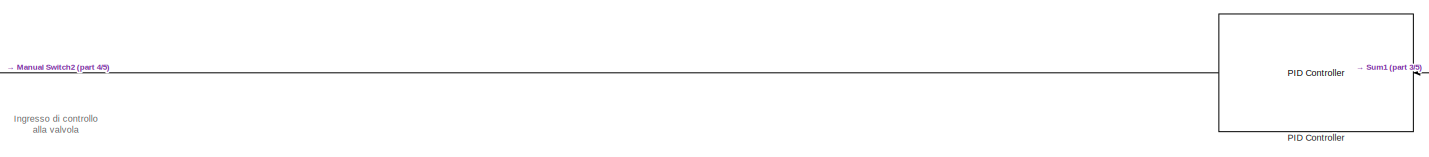
[diagram: root canvas - part 1/5, top center region]
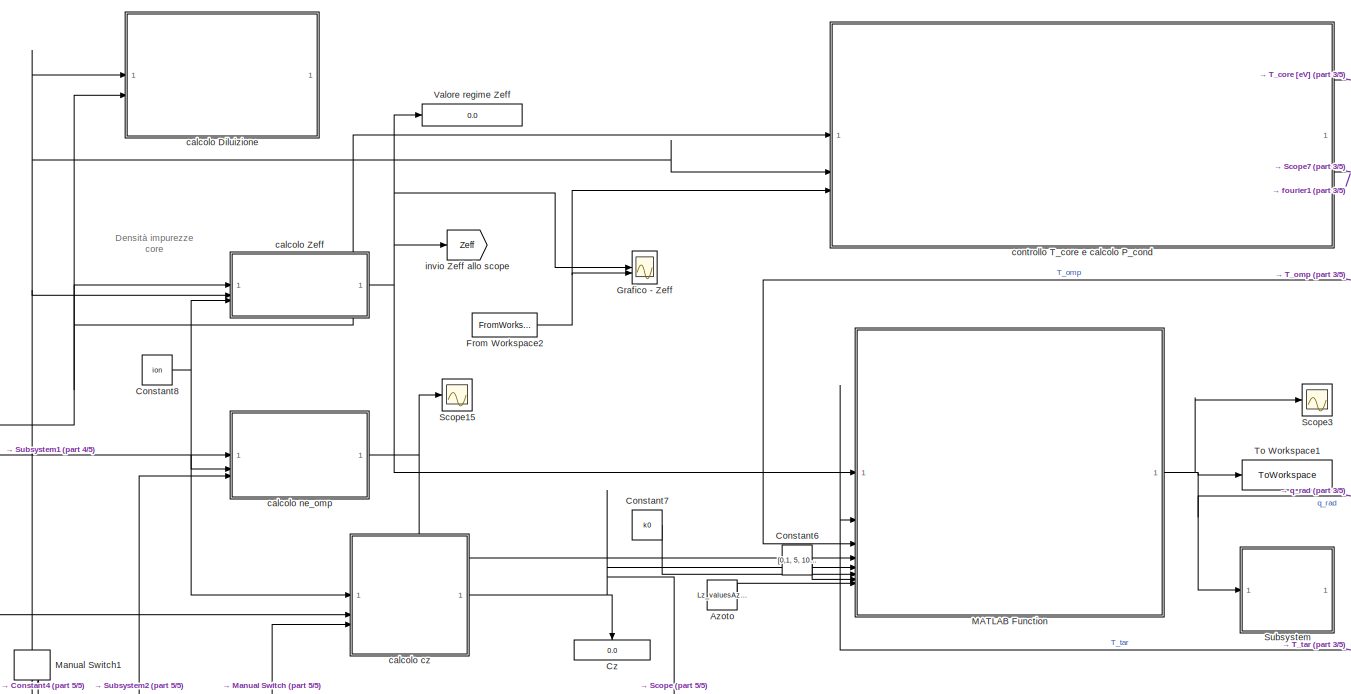
[diagram: root canvas - part 2/5, central region]
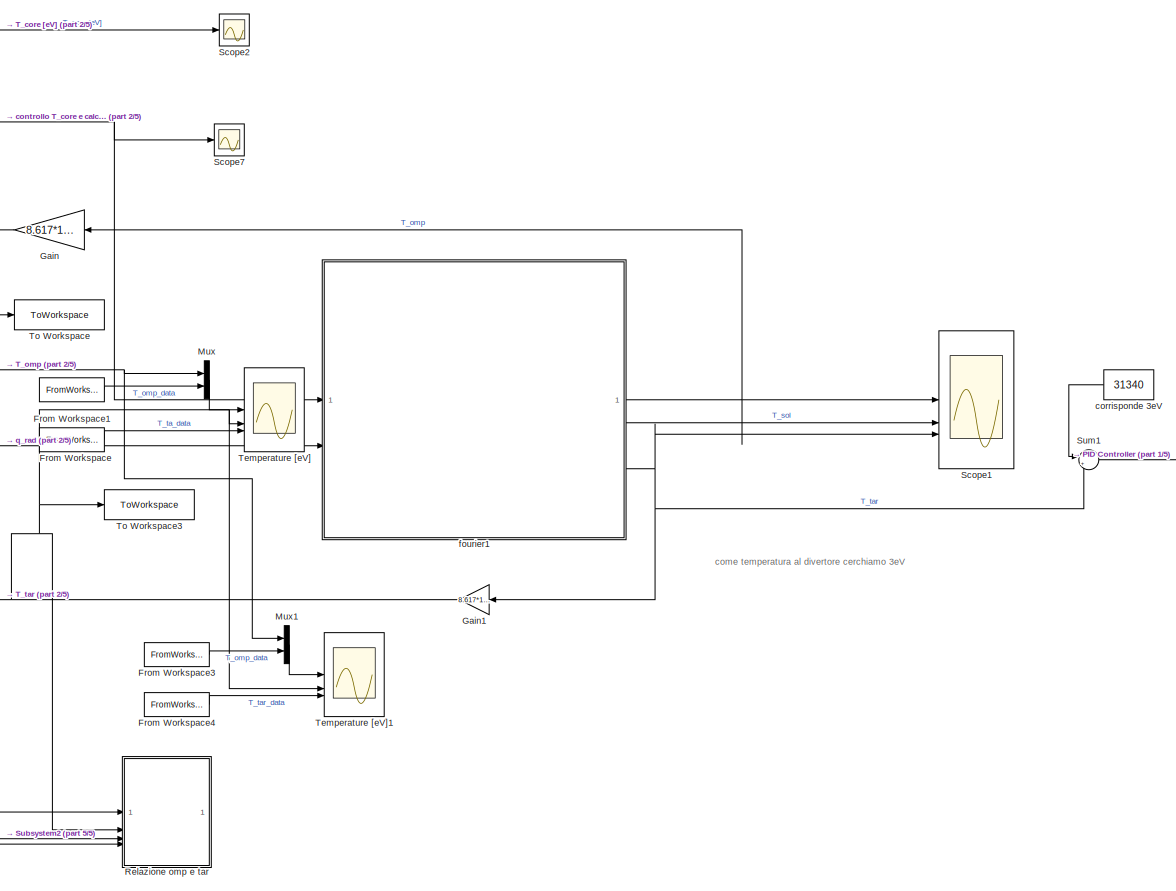
[diagram: root canvas - part 3/5, middle right region]
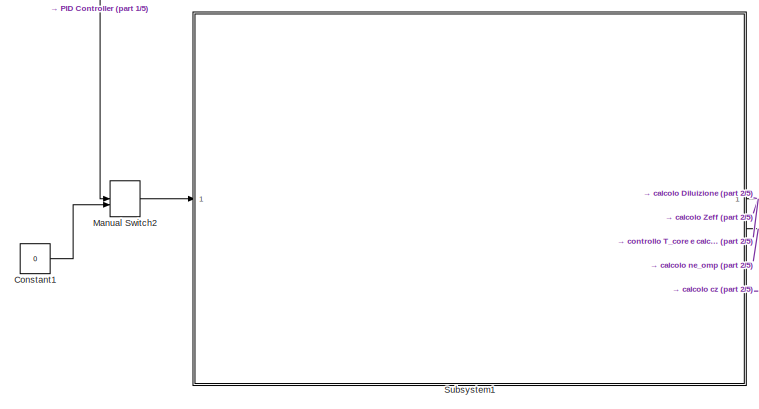
[diagram: root canvas - part 4/5, middle left region]
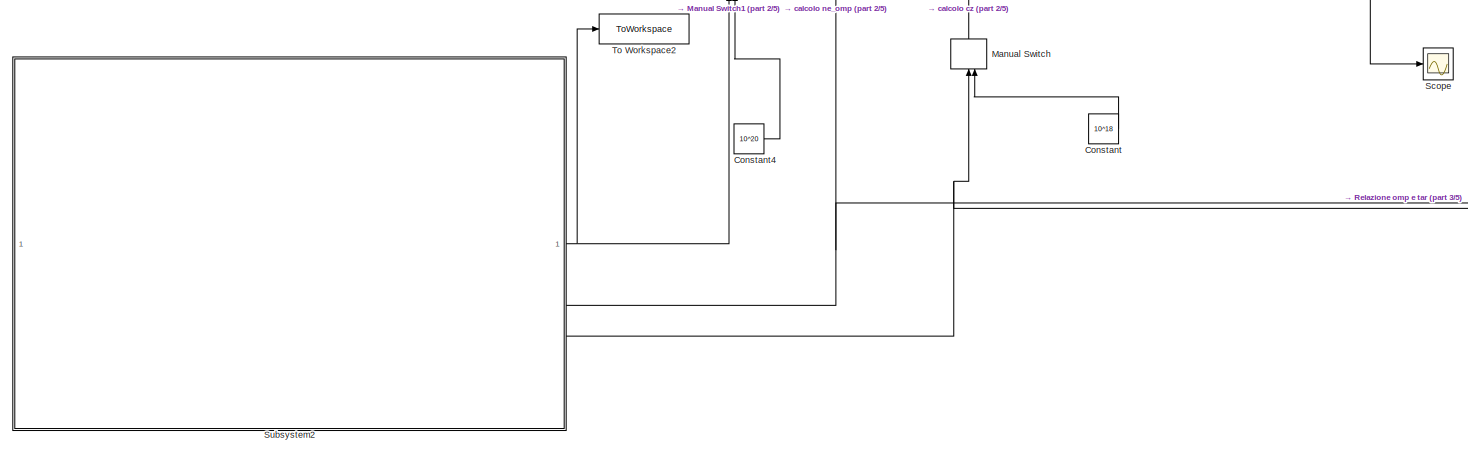
[diagram: root canvas - part 5/5, bottom left region]
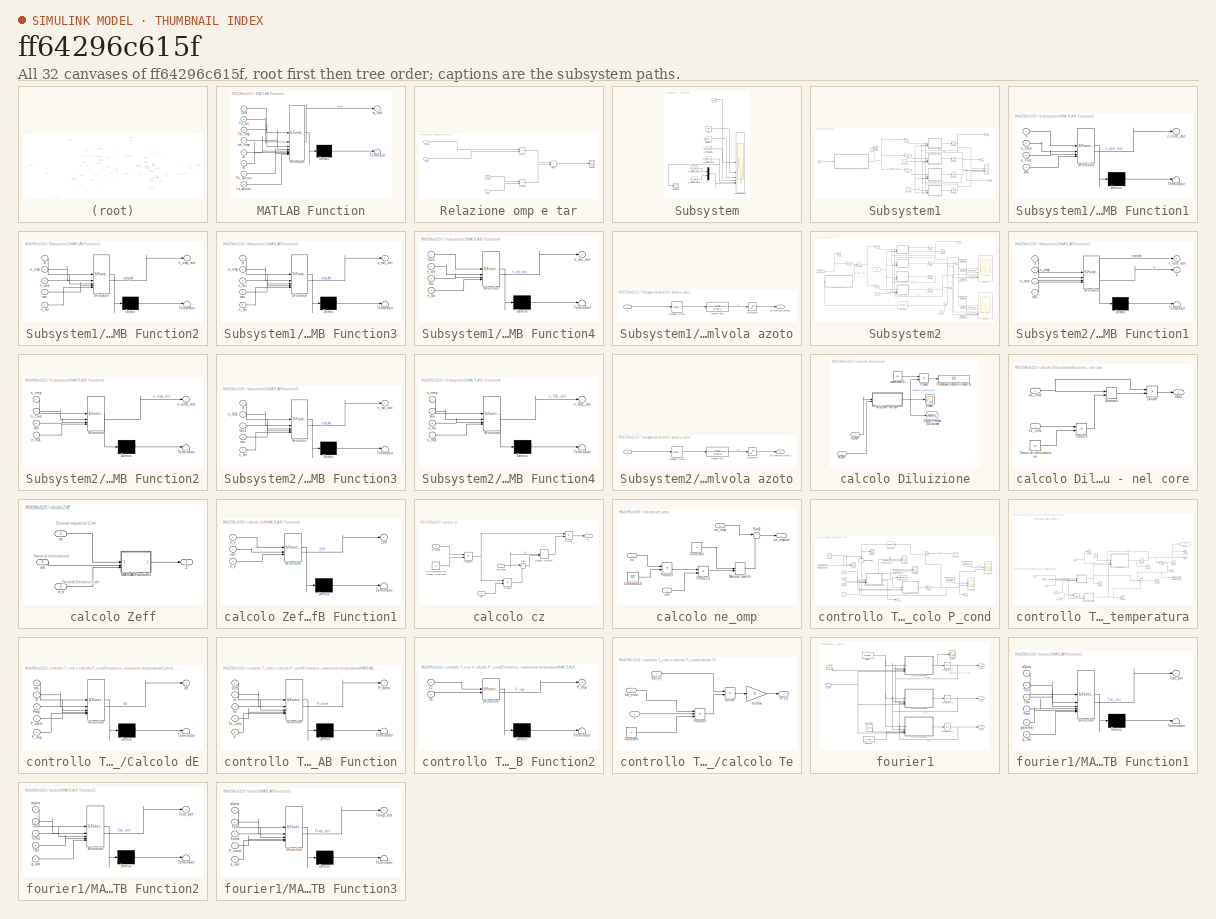
[diagram: thumbnail index - all 32 canvases of the model, root first then tree order]
MODEL slx_ff64296c615f
KIND model
CONFIG AbsTol = auto
CONFIG EnableMultiTasking = off
CONFIG FixedStep = auto
CONFIG MaxStep = auto
CONFIG MinStep = auto
CONFIG RelTol = 1e-3
CONFIG SampleTimeConstraint = Unconstrained
CONFIG SolverName = VariableStepAuto
CONFIG StartTime = 0.0
CONFIG StopTime = 3
BLOCK [Constant] Azoto
  Value = Lz_valuesAzoto
BLOCK [Constant] Constant
  Value = 10^18
BLOCK [Constant] Constant1
  Value = 0
BLOCK [Constant] Constant4
  Value = 10^20
BLOCK [Constant] Constant6
  Value = [0,1, 5, 10, 12, 15, 20, 30, 59, 100, 155, 200, 300, 500, 700, 1000, 3000, 10000]
BLOCK [Constant] Constant7
  Value = k0
BLOCK [Constant] Constant8
  Value = ion
BLOCK [Display] Cz
  Decimation = 1
  NameLocation = left
BLOCK [FromWorkspace] From Workspace
  VariableName = temp_tar_data
BLOCK [FromWorkspace] From Workspace1
  VariableName = temp_omp_data
BLOCK [FromWorkspace] From Workspace2
  VariableName = Z_eff
BLOCK [FromWorkspace] From Workspace3
  VariableName = temp_omp_data_filt
BLOCK [FromWorkspace] From Workspace4
  VariableName = temp_tar_data_filt
BLOCK [Gain] Gain
  Gain = 8.617*10^-5
BLOCK [Gain] Gain1
  Gain = 8.617*10^-5
BLOCK [Scope] Grafico - Zeff
  Floating = off
  NumInputPorts = 2
  ScopeSpecificationString = Simulink.scopes.TimeScopeBlockCfg('CurrentConfiguration', extmgr.ConfigurationSet(extmgr.Configuration('Core','General UI',true),extmgr.Configuration('Core','Source UI',true),extmgr.Configuration('Sources','WiredSimulink',true,'DataLoggingVariableName','ScopeData1','DataLogging',true,'DataLoggingSaveFormat','StructureWithTime'),extmgr.Configuration('Visuals','Time Domain',true,'SerializedDisplays'...<+1705ch>
BLOCK [SubSystem] MATLAB Function
  ErrorFcn = Stateflow.Translate.translate
  PermitHierarchicalResolution = ExplicitOnly
  SFBlockType = MATLAB Function
  TreatAsAtomicUnit = on
BLOCK [Demux] MATLAB Function/ Demux 
  Outputs = 1
BLOCK [S-Function] MATLAB Function/ SFunction 
  EnableBusSupport = on
  FunctionName = sf_sfun
  PortCounts = [8 2]
  SFcnIsStateOwnerBlock = off
  SFunctionDeploymentMode = off
  Tag = Stateflow S-Function 2
BLOCK [Terminator] MATLAB Function/ Terminator 
BLOCK [Inport] MATLAB Function/Lz_values
  Port = 8
BLOCK [Inport] MATLAB Function/Te_omp
  Port = 3
BLOCK [Inport] MATLAB Function/Te_tar
  Port = 2
BLOCK [Inport] MATLAB Function/Te_values
  Port = 7
BLOCK [Inport] MATLAB Function/Zeff
BLOCK [Inport] MATLAB Function/cz
  Port = 5
BLOCK [Inport] MATLAB Function/k0
  Port = 6
BLOCK [Inport] MATLAB Function/ne_omp
  Port = 4
BLOCK [Outport] MATLAB Function/q_rad
BLOCK [ManualSwitch] Manual Switch
  NameLocation = right
BLOCK [ManualSwitch] Manual Switch1
  NameLocation = right
BLOCK [ManualSwitch] Manual Switch2
BLOCK [Mux] Mux
  DisplayOption = bar
  Inputs = 2
BLOCK [Mux] Mux1
  DisplayOption = bar
  Inputs = 2
BLOCK [Reference] PID Controller  REF=slpidlib/PID Controller
  LibrarySourceBlock = simulink/Continuous/PID Controller
  SourceBlock = slpidlib/PID Controller
  SourceType = PID 1dof
BLOCK [SubSystem] Relazione omp e tar
BLOCK [Product] Relazione omp e tar/Divide
  Inputs = */
BLOCK [Product] Relazione omp e tar/Product
BLOCK [Product] Relazione omp e tar/Product1
BLOCK [Scope] Relazione omp e tar/Scope9
  Floating = off
  NumInputPorts = 1
  ScopeSpecificationString = Simulink.scopes.TimeScopeBlockCfg('CurrentConfiguration', extmgr.ConfigurationSet(extmgr.Configuration('Core','General UI',true),extmgr.Configuration('Core','Source UI',true),extmgr.Configuration('Sources','WiredSimulink',true,'DataLoggingVariableName','ScopeData2'),extmgr.Configuration('Visuals','Time Domain',true,'SerializedDisplays',{struct('MinYLimReal','1.09187','MaxYLimReal','2.01774','YLabe...<+1452ch>
BLOCK [Inport] Relazione omp e tar/T-omp
BLOCK [Inport] Relazione omp e tar/T-target
  Port = 2
BLOCK [Inport] Relazione omp e tar/n_omp
  Port = 3
BLOCK [Inport] Relazione omp e tar/n_tar
  Port = 4
BLOCK [Scope] Scope
  Floating = off
  NumInputPorts = 1
  ScopeSpecificationString = Simulink.scopes.TimeScopeBlockCfg('CurrentConfiguration', extmgr.ConfigurationSet(extmgr.Configuration('Core','General UI',true),extmgr.Configuration('Core','Source UI',true),extmgr.Configuration('Sources','WiredSimulink',true,'DataLoggingVariableName','ScopeData2'),extmgr.Configuration('Visuals','Time Domain',true,'SerializedDisplays',{struct('MinYLimReal','-0.0000002','MaxYLimReal','0.0000016','...<+1474ch>
BLOCK [Scope] Scope1
  Floating = off
  NumInputPorts = 3
  ScopeSpecificationString = Simulink.scopes.TimeScopeBlockCfg('CurrentConfiguration', extmgr.ConfigurationSet(extmgr.Configuration('Core','General UI',true,'FigureColor',[1 1 1]),extmgr.Configuration('Core','Source UI',true),extmgr.Configuration('Sources','WiredSimulink',true,'DataLoggingVariableName','ScopeData2','DataLogging',true,'DataLoggingSaveFormat','StructureWithTime'),extmgr.Configuration('Visuals','Time Domain',tru...<+3769ch>
BLOCK [Scope] Scope15
  Floating = off
  NumInputPorts = 1
  ScopeSpecificationString = Simulink.scopes.TimeScopeBlockCfg('CurrentConfiguration', extmgr.ConfigurationSet(extmgr.Configuration('Core','General UI',true),extmgr.Configuration('Core','Source UI',true),extmgr.Configuration('Sources','WiredSimulink',true,'DataLoggingVariableName','ScopeData3'),extmgr.Configuration('Visuals','Time Domain',true,'SerializedDisplays',{struct('MinYLimReal','-4657633564484337664.00000','MaxYLimRea...<+1633ch>
BLOCK [Scope] Scope2
  Floating = off
  NumInputPorts = 1
  ScopeSpecificationString = Simulink.scopes.TimeScopeBlockCfg('CurrentConfiguration', extmgr.ConfigurationSet(extmgr.Configuration('Core','General UI',true,'FigureColor',[1 1 1]),extmgr.Configuration('Core','Source UI',true),extmgr.Configuration('Sources','WiredSimulink',true,'DataLoggingVariableName','ScopeData4'),extmgr.Configuration('Visuals','Time Domain',true,'SerializedDisplays',{struct('MinYLimReal','1017.27099','MaxY...<+1586ch>
BLOCK [Scope] Scope3
  Floating = off
  NumInputPorts = 1
  ScopeSpecificationString = Simulink.scopes.TimeScopeBlockCfg('CurrentConfiguration', extmgr.ConfigurationSet(extmgr.Configuration('Core','General UI',true,'FigureColor',[1 1 1]),extmgr.Configuration('Core','Source UI',true),extmgr.Configuration('Sources','WiredSimulink',true,'DataLoggingVariableName','ScopeData5'),extmgr.Configuration('Visuals','Time Domain',true,'SerializedDisplays',{struct('MinYLimReal','-1.00000','MaxYLi...<+1556ch>
BLOCK [Scope] Scope7
  Floating = off
  NumInputPorts = 1
  ScopeSpecificationString = Simulink.scopes.TimeScopeBlockCfg('CurrentConfiguration', extmgr.ConfigurationSet(extmgr.Configuration('Core','General UI',true),extmgr.Configuration('Core','Source UI',true),extmgr.Configuration('Sources','WiredSimulink',true,'DataLoggingVariableName','ScopeData8'),extmgr.Configuration('Visuals','Time Domain',true,'SerializedDisplays',{struct('MinYLimReal','67447.75679','MaxYLimReal','336323.6896...<+1589ch>
BLOCK [SubSystem] Subsystem
BLOCK [From] Subsystem/Diluizione
  GotoTag = Deuterio_residuo_core
  TagVisibility = global
BLOCK [Scope] Subsystem/Grafici - Rilevanti
  Floating = off
  NumInputPorts = 6
  ScopeSpecificationString = Simulink.scopes.TimeScopeBlockCfg('CurrentConfiguration', extmgr.ConfigurationSet(extmgr.Configuration('Core','General UI',true,'FigureColor',[1 1 1]),extmgr.Configuration('Core','Source UI',true),extmgr.Configuration('Sources','WiredSimulink',true,'DataLoggingVariableName','ScopeData1'),extmgr.Configuration('Visuals','Time Domain',true,'SerializedDisplays',{struct('MinYLimReal','-59899.79011','Ma...<+6382ch>
BLOCK [Mux] Subsystem/Mux1
  DisplayOption = bar
  Inputs = 2
BLOCK [Scope] Subsystem/Scope8
  Floating = off
  NumInputPorts = 1
  ScopeSpecificationString = Simulink.scopes.TimeScopeBlockCfg('CurrentConfiguration', extmgr.ConfigurationSet(extmgr.Configuration('Core','General UI',true,'FigureColor',[1 1 1]),extmgr.Configuration('Core','Source UI',true),extmgr.Configuration('Sources','WiredSimulink',true,'DataLoggingVariableName','ScopeData12'),extmgr.Configuration('Visuals','Time Domain',true,'SerializedDisplays',{struct('MinYLimReal','-295720625862519...<+1755ch>
BLOCK [From] Subsystem/Zeff
  GotoTag = Zeff
  TagVisibility = global
BLOCK [From] Subsystem/ne_Deuterio
  GotoTag = ne_Deuterio
BLOCK [From] Subsystem/ne_iniettato_valvola
  GotoTag = ne_iniettato_valvola
BLOCK [From] Subsystem/nz_impurezze
  GotoTag = nz_impurezze
BLOCK [From] Subsystem/nz_iniettato_valvola
  GotoTag = nz_iniettato_valvola
BLOCK [Inport] Subsystem/q_rad
BLOCK [SubSystem] Subsystem1
BLOCK [Constant] Subsystem1/Constant1
  Value = 0.3
BLOCK [Constant] Subsystem1/Constant2
  Value = 0.5
BLOCK [Gain] Subsystem1/Gain2
  Gain = 0.1
BLOCK [Gain] Subsystem1/Gain3
  Gain = 0.2
BLOCK [Gain] Subsystem1/Gain4
  Gain = 0.7
BLOCK [Inport] Subsystem1/Input
BLOCK [Integrator] Subsystem1/Integrator
BLOCK [Integrator] Subsystem1/Integrator1
BLOCK [Integrator] Subsystem1/Integrator2
BLOCK [Integrator] Subsystem1/Integrator3
BLOCK [SubSystem] Subsystem1/MATLAB Function1
  ErrorFcn = Stateflow.Translate.translate
  PermitHierarchicalResolution = ExplicitOnly
  SFBlockType = MATLAB Function
  TreatAsAtomicUnit = on
BLOCK [Demux] Subsystem1/MATLAB Function1/ Demux 
  Outputs = 1
BLOCK [S-Function] Subsystem1/MATLAB Function1/ SFunction 
  EnableBusSupport = on
  FunctionName = sf_sfun
  PortCounts = [4 2]
  SFcnIsStateOwnerBlock = off
  SFunctionDeploymentMode = off
  Tag = Stateflow S-Function 7
BLOCK [Terminator] Subsystem1/MATLAB Function1/ Terminator 
BLOCK [Inport] Subsystem1/MATLAB Function1/S
BLOCK [Inport] Subsystem1/MATLAB Function1/n_core
  Port = 3
BLOCK [Outport] Subsystem1/MATLAB Function1/n_core_dot
BLOCK [Inport] Subsystem1/MATLAB Function1/n_omp
  Port = 2
BLOCK [Inport] Subsystem1/MATLAB Function1/tau
  Port = 4
BLOCK [SubSystem] Subsystem1/MATLAB Function2
  ErrorFcn = Stateflow.Translate.translate
  PermitHierarchicalResolution = ExplicitOnly
  SFBlockType = MATLAB Function
  TreatAsAtomicUnit = on
BLOCK [Demux] Subsystem1/MATLAB Function2/ Demux 
  Outputs = 1
BLOCK [S-Function] Subsystem1/MATLAB Function2/ SFunction 
  EnableBusSupport = on
  FunctionName = sf_sfun
  PortCounts = [5 2]
  SFcnIsStateOwnerBlock = off
  SFunctionDeploymentMode = off
  Tag = Stateflow S-Function 8
BLOCK [Terminator] Subsystem1/MATLAB Function2/ Terminator 
BLOCK [Inport] Subsystem1/MATLAB Function2/S
BLOCK [Inport] Subsystem1/MATLAB Function2/n_core
  Port = 3
BLOCK [Inport] Subsystem1/MATLAB Function2/n_omp
  Port = 2
BLOCK [Outport] Subsystem1/MATLAB Function2/n_omp_dot
BLOCK [Inport] Subsystem1/MATLAB Function2/n_tar
  Port = 5
BLOCK [Inport] Subsystem1/MATLAB Function2/tau
  Port = 4
BLOCK [SubSystem] Subsystem1/MATLAB Function3
  ErrorFcn = Stateflow.Translate.translate
  PermitHierarchicalResolution = ExplicitOnly
  SFBlockType = MATLAB Function
  TreatAsAtomicUnit = on
BLOCK [Demux] Subsystem1/MATLAB Function3/ Demux 
  Outputs = 1
BLOCK [S-Function] Subsystem1/MATLAB Function3/ SFunction 
  EnableBusSupport = on
  FunctionName = sf_sfun
  PortCounts = [5 2]
  SFcnIsStateOwnerBlock = off
  SFunctionDeploymentMode = off
  Tag = Stateflow S-Function 9
BLOCK [Terminator] Subsystem1/MATLAB Function3/ Terminator 
BLOCK [Inport] Subsystem1/MATLAB Function3/S
BLOCK [Inport] Subsystem1/MATLAB Function3/n_div
  Port = 3
BLOCK [Inport] Subsystem1/MATLAB Function3/n_omp
  Port = 2
BLOCK [Inport] Subsystem1/MATLAB Function3/n_tar
  Port = 5
BLOCK [Outport] Subsystem1/MATLAB Function3/n_tar_dot
BLOCK [Inport] Subsystem1/MATLAB Function3/tau
  Port = 4
BLOCK [SubSystem] Subsystem1/MATLAB Function4
  ErrorFcn = Stateflow.Translate.translate
  PermitHierarchicalResolution = ExplicitOnly
  SFBlockType = MATLAB Function
  TreatAsAtomicUnit = on
BLOCK [Demux] Subsystem1/MATLAB Function4/ Demux 
  Outputs = 1
BLOCK [S-Function] Subsystem1/MATLAB Function4/ SFunction 
  EnableBusSupport = on
  FunctionName = sf_sfun
  PortCounts = [4 2]
  SFcnIsStateOwnerBlock = off
  SFunctionDeploymentMode = off
  Tag = Stateflow S-Function 12
BLOCK [Terminator] Subsystem1/MATLAB Function4/ Terminator 
BLOCK [Inport] Subsystem1/MATLAB Function4/n_div
  Port = 2
BLOCK [Outport] Subsystem1/MATLAB Function4/n_div_dot
BLOCK [Inport] Subsystem1/MATLAB Function4/n_tar
  Port = 4
BLOCK [Inport] Subsystem1/MATLAB Function4/tau
  Port = 3
BLOCK [Inport] Subsystem1/MATLAB Function4/tau1
BLOCK [Scope] Subsystem1/Scope5
  Floating = off
  NumInputPorts = 4
  ScopeSpecificationString = Simulink.scopes.TimeScopeBlockCfg('CurrentConfiguration', extmgr.ConfigurationSet(extmgr.Configuration('Core','General UI',true,'FigureColor',[1 1 1]),extmgr.Configuration('Core','Source UI',true),extmgr.Configuration('Sources','WiredSimulink',true,'DataLoggingVariableName','ScopeData10'),extmgr.Configuration('Visuals','Time Domain',true,'SerializedDisplays',{struct('MinYLimReal','-17194603256050....<+2041ch>
BLOCK [Scope] Subsystem1/Scope8
  Floating = off
  NumInputPorts = 1
  ScopeSpecificationString = Simulink.scopes.TimeScopeBlockCfg('CurrentConfiguration', extmgr.ConfigurationSet(extmgr.Configuration('Core','General UI',true),extmgr.Configuration('Core','Source UI',true),extmgr.Configuration('Sources','WiredSimulink',true,'DataLoggingVariableName','ScopeData1'),extmgr.Configuration('Visuals','Time Domain',true,'SerializedDisplays',{struct('MinYLimReal','-8173718805244.14453','MaxYLimReal','73...<+1562ch>
BLOCK [SubSystem] Subsystem1/modello valvola azoto
BLOCK [Saturate] Subsystem1/modello valvola azoto/Saturation
  LowerLimit = 0
  UpperLimit = inf
BLOCK [TransferFcn] Subsystem1/modello valvola azoto/Transfer Fcn
  Denominator = [0.002 1]
  Numerator = [0.91]
BLOCK [TransportDelay] Subsystem1/modello valvola azoto/Transport Delay
  DelayTime = 0.0019
BLOCK [Outport] Subsystem1/modello valvola azoto/nz iniettato valvola
BLOCK [Inport] Subsystem1/modello valvola azoto/u
BLOCK [Outport] Subsystem1/n_core
BLOCK [Outport] Subsystem1/n_omp
  Port = 2
BLOCK [Outport] Subsystem1/n_tar
  Port = 3
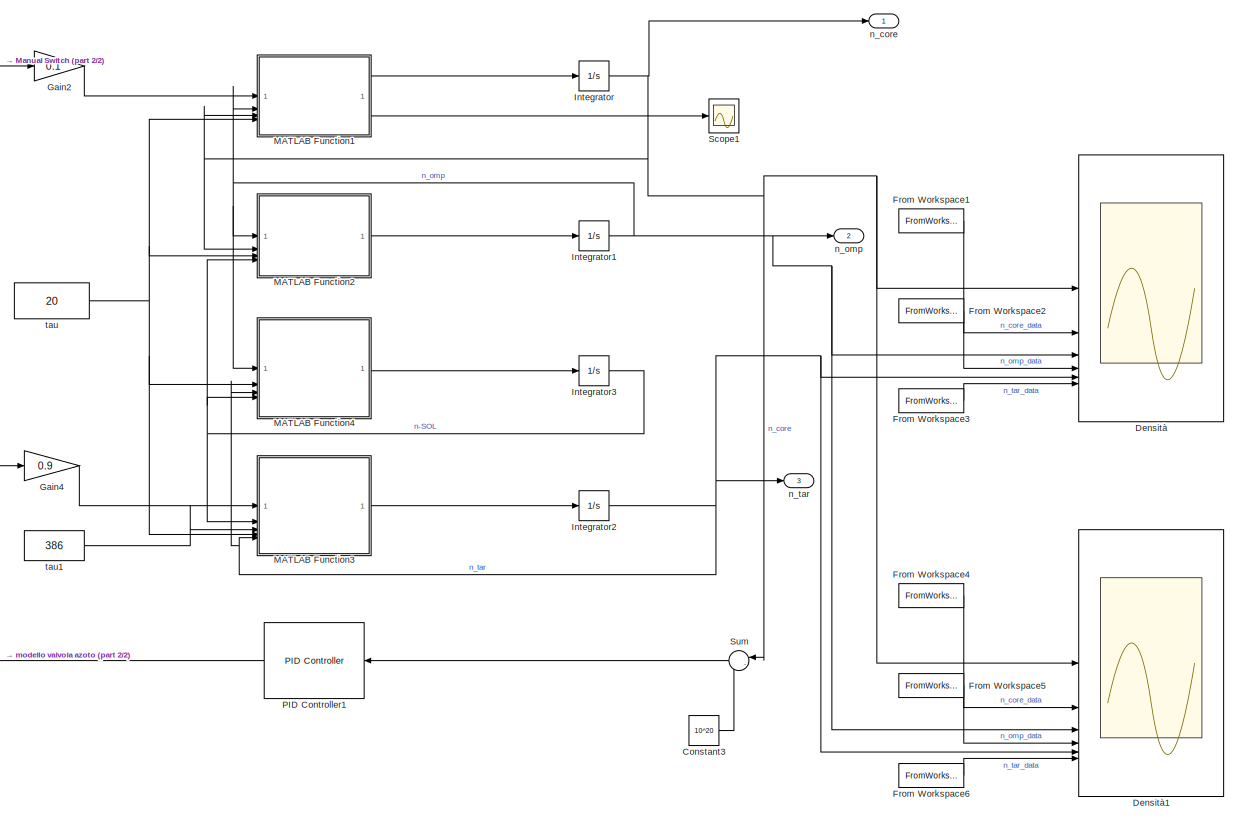
[diagram: Subsystem2 - part 1/2, center side, full height]
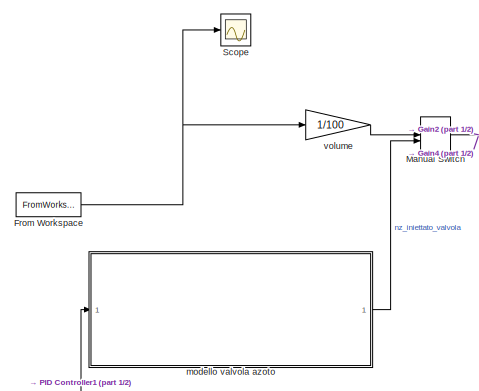
[diagram: Subsystem2 - part 2/2, middle left region]
BLOCK [SubSystem] Subsystem2
BLOCK [Constant] Subsystem2/Constant3
  Value = 10^20
BLOCK [Scope] Subsystem2/Densità
  Floating = off
  NumInputPorts = 6
  ScopeSpecificationString = Simulink.scopes.TimeScopeBlockCfg('CurrentConfiguration', extmgr.ConfigurationSet(extmgr.Configuration('Core','General UI',true,'FigureColor',[1 1 1]),extmgr.Configuration('Core','Source UI',true),extmgr.Configuration('Sources','WiredSimulink',true,'DataLoggingVariableName','ScopeData1'),extmgr.Configuration('Visuals','Time Domain',true,'SerializedDisplays',{struct('MinYLimReal','-1225760338985059...<+2571ch>
BLOCK [Scope] Subsystem2/Densità1
  Floating = off
  NumInputPorts = 6
  ScopeSpecificationString = Simulink.scopes.TimeScopeBlockCfg('CurrentConfiguration', extmgr.ConfigurationSet(extmgr.Configuration('Core','General UI',true,'FigureColor',[1 1 1]),extmgr.Configuration('Core','Source UI',true),extmgr.Configuration('Sources','WiredSimulink',true,'DataLoggingVariableName','ScopeData1'),extmgr.Configuration('Visuals','Time Domain',true,'SerializedDisplays',{struct('MinYLimReal','-1714958421157616...<+2545ch>
BLOCK [FromWorkspace] Subsystem2/From Workspace
  VariableName = valvola
BLOCK [FromWorkspace] Subsystem2/From Workspace1
  VariableName = n_core_data_filt
BLOCK [FromWorkspace] Subsystem2/From Workspace2
  VariableName = n_omp_data_filt
BLOCK [FromWorkspace] Subsystem2/From Workspace3
  VariableName = n_tar_data_filt
BLOCK [FromWorkspace] Subsystem2/From Workspace4
  VariableName = n_core_data
BLOCK [FromWorkspace] Subsystem2/From Workspace5
  VariableName = n_omp_data
BLOCK [FromWorkspace] Subsystem2/From Workspace6
  VariableName = n_tar_data
BLOCK [Gain] Subsystem2/Gain2
  Gain = 0.1
BLOCK [Gain] Subsystem2/Gain4
  Gain = 0.9
BLOCK [Integrator] Subsystem2/Integrator
  InitialCondition = ci_core
BLOCK [Integrator] Subsystem2/Integrator1
  InitialCondition = ci_omp
BLOCK [Integrator] Subsystem2/Integrator2
  InitialCondition = ci_tar
BLOCK [Integrator] Subsystem2/Integrator3
  InitialCondition = (ci_core + ci_tar)/2
BLOCK [SubSystem] Subsystem2/MATLAB Function1
  ErrorFcn = Stateflow.Translate.translate
  PermitHierarchicalResolution = ExplicitOnly
  SFBlockType = MATLAB Function
  TreatAsAtomicUnit = on
BLOCK [Demux] Subsystem2/MATLAB Function1/ Demux 
  Outputs = 1
BLOCK [S-Function] Subsystem2/MATLAB Function1/ SFunction 
  EnableBusSupport = on
  FunctionName = sf_sfun
  PortCounts = [4 3]
  SFcnIsStateOwnerBlock = off
  SFunctionDeploymentMode = off
  Tag = Stateflow S-Function 17
BLOCK [Terminator] Subsystem2/MATLAB Function1/ Terminator 
BLOCK [Inport] Subsystem2/MATLAB Function1/S
BLOCK [Inport] Subsystem2/MATLAB Function1/n_core
  Port = 3
BLOCK [Outport] Subsystem2/MATLAB Function1/n_core_dot
BLOCK [Inport] Subsystem2/MATLAB Function1/n_omp
  Port = 2
BLOCK [Inport] Subsystem2/MATLAB Function1/tau
  Port = 4
BLOCK [Outport] Subsystem2/MATLAB Function1/y
  Port = 2
BLOCK [SubSystem] Subsystem2/MATLAB Function2
  ErrorFcn = Stateflow.Translate.translate
  PermitHierarchicalResolution = ExplicitOnly
  SFBlockType = MATLAB Function
  TreatAsAtomicUnit = on
BLOCK [Demux] Subsystem2/MATLAB Function2/ Demux 
  Outputs = 1
BLOCK [S-Function] Subsystem2/MATLAB Function2/ SFunction 
  EnableBusSupport = on
  FunctionName = sf_sfun
  PortCounts = [4 2]
  SFcnIsStateOwnerBlock = off
  SFunctionDeploymentMode = off
  Tag = Stateflow S-Function 18
BLOCK [Terminator] Subsystem2/MATLAB Function2/ Terminator 
BLOCK [Inport] Subsystem2/MATLAB Function2/n_SOL
  Port = 4
BLOCK [Inport] Subsystem2/MATLAB Function2/n_core
  Port = 2
BLOCK [Inport] Subsystem2/MATLAB Function2/n_omp
BLOCK [Outport] Subsystem2/MATLAB Function2/n_omp_dot
BLOCK [Inport] Subsystem2/MATLAB Function2/tau
  Port = 3
BLOCK [SubSystem] Subsystem2/MATLAB Function3
  ErrorFcn = Stateflow.Translate.translate
  PermitHierarchicalResolution = ExplicitOnly
  SFBlockType = MATLAB Function
  TreatAsAtomicUnit = on
BLOCK [Demux] Subsystem2/MATLAB Function3/ Demux 
  Outputs = 1
BLOCK [S-Function] Subsystem2/MATLAB Function3/ SFunction 
  EnableBusSupport = on
  FunctionName = sf_sfun
  PortCounts = [5 2]
  SFcnIsStateOwnerBlock = off
  SFunctionDeploymentMode = off
  Tag = Stateflow S-Function 19
BLOCK [Terminator] Subsystem2/MATLAB Function3/ Terminator 
BLOCK [Inport] Subsystem2/MATLAB Function3/S
BLOCK [Inport] Subsystem2/MATLAB Function3/n_SOL
  Port = 2
BLOCK [Inport] Subsystem2/MATLAB Function3/n_tar
  Port = 5
BLOCK [Outport] Subsystem2/MATLAB Function3/n_tar_dot
BLOCK [Inport] Subsystem2/MATLAB Function3/tau
  Port = 4
BLOCK [Inport] Subsystem2/MATLAB Function3/tau1
  Port = 3
BLOCK [SubSystem] Subsystem2/MATLAB Function4
  ErrorFcn = Stateflow.Translate.translate
  PermitHierarchicalResolution = ExplicitOnly
  SFBlockType = MATLAB Function
  TreatAsAtomicUnit = on
BLOCK [Demux] Subsystem2/MATLAB Function4/ Demux 
  Outputs = 1
BLOCK [S-Function] Subsystem2/MATLAB Function4/ SFunction 
  EnableBusSupport = on
  FunctionName = sf_sfun
  PortCounts = [4 2]
  SFcnIsStateOwnerBlock = off
  SFunctionDeploymentMode = off
  Tag = Stateflow S-Function 3
BLOCK [Terminator] Subsystem2/MATLAB Function4/ Terminator 
BLOCK [Inport] Subsystem2/MATLAB Function4/n_SOL
  Port = 4
BLOCK [Outport] Subsystem2/MATLAB Function4/n_SOL_dot
BLOCK [Inport] Subsystem2/MATLAB Function4/n_omp
BLOCK [Inport] Subsystem2/MATLAB Function4/n_tar
  Port = 3
BLOCK [Inport] Subsystem2/MATLAB Function4/tau
  Port = 2
BLOCK [ManualSwitch] Subsystem2/Manual Switch
BLOCK [Reference] Subsystem2/PID Controller1  REF=slpidlib/PID Controller
  SourceBlock = slpidlib/PID Controller
  SourceType = PID 1dof
BLOCK [Scope] Subsystem2/Scope
  Floating = off
  NumInputPorts = 1
  ScopeSpecificationString = Simulink.scopes.TimeScopeBlockCfg('CurrentConfiguration', extmgr.ConfigurationSet(extmgr.Configuration('Core','General UI',true),extmgr.Configuration('Core','Source UI',true),extmgr.Configuration('Sources','WiredSimulink',true,'DataLoggingVariableName','ScopeData9'),extmgr.Configuration('Visuals','Time Domain',true,'SerializedDisplays',{struct('MinYLimReal','5671529547395235840000.00000','MaxYLimR...<+1672ch>
BLOCK [Scope] Subsystem2/Scope1
  Floating = off
  NumInputPorts = 1
  ScopeSpecificationString = Simulink.scopes.TimeScopeBlockCfg('CurrentConfiguration', extmgr.ConfigurationSet(extmgr.Configuration('Core','General UI',true),extmgr.Configuration('Core','Source UI',true),extmgr.Configuration('Sources','WiredSimulink',true,'DataLoggingVariableName','ScopeData1'),extmgr.Configuration('Visuals','Time Domain',true,'SerializedDisplays',{struct('MinYLimReal','-1213105865549427200.00000','MaxYLimRea...<+1641ch>
BLOCK [Sum] Subsystem2/Sum
  Inputs = |-+
BLOCK [SubSystem] Subsystem2/modello valvola azoto
BLOCK [Saturate] Subsystem2/modello valvola azoto/Saturation
  LowerLimit = 0
  UpperLimit = inf
BLOCK [TransferFcn] Subsystem2/modello valvola azoto/Transfer Fcn
  Denominator = [0.002 1]
  Numerator = [0.91]
BLOCK [TransportDelay] Subsystem2/modello valvola azoto/Transport Delay
  DelayTime = 0.0019
BLOCK [Outport] Subsystem2/modello valvola azoto/nz iniettato valvola
BLOCK [Inport] Subsystem2/modello valvola azoto/u
BLOCK [Outport] Subsystem2/n_core
BLOCK [Outport] Subsystem2/n_omp
  Port = 2
BLOCK [Outport] Subsystem2/n_tar
  Port = 3
BLOCK [Constant] Subsystem2/tau
  Value = 20
BLOCK [Constant] Subsystem2/tau1
  Value = 386
BLOCK [Gain] Subsystem2/volume
  Gain = 1/100
BLOCK [Sum] Sum1
  Inputs = |+-
BLOCK [Scope] Temperature [eV]
  Floating = off
  NumInputPorts = 3
  ScopeSpecificationString = Simulink.scopes.TimeScopeBlockCfg('CurrentConfiguration', extmgr.ConfigurationSet(extmgr.Configuration('Core','General UI',true,'FigureColor',[1 1 1]),extmgr.Configuration('Core','Source UI',true),extmgr.Configuration('Sources','WiredSimulink',true,'DataLoggingVariableName','ScopeData6','DataLogging',true,'DataLoggingSaveFormat','StructureWithTime'),extmgr.Configuration('Visuals','Time Domain',tru...<+2752ch>
BLOCK [Scope] Temperature [eV]1
  Floating = off
  NumInputPorts = 3
  ScopeSpecificationString = Simulink.scopes.TimeScopeBlockCfg('CurrentConfiguration', extmgr.ConfigurationSet(extmgr.Configuration('Core','General UI',true,'FigureColor',[1 1 1]),extmgr.Configuration('Core','Source UI',true),extmgr.Configuration('Sources','WiredSimulink',true,'DataLoggingVariableName','ScopeData4','DataLogging',true,'DataLoggingSaveFormat','StructureWithTime'),extmgr.Configuration('Visuals','Time Domain',tru...<+2734ch>
BLOCK [ToWorkspace] To Workspace
  FixptAsFi = on
  MaxDataPoints = inf
  SampleTime = -1
  SaveFormat = Timeseries
  VariableName = Tomp
BLOCK [ToWorkspace] To Workspace1
  FixptAsFi = on
  MaxDataPoints = inf
  SampleTime = -1
  SaveFormat = Timeseries
  VariableName = qrad
BLOCK [ToWorkspace] To Workspace2
  FixptAsFi = on
  MaxDataPoints = inf
  SampleTime = -1
  SaveFormat = Timeseries
  VariableName = n_core
BLOCK [ToWorkspace] To Workspace3
  FixptAsFi = on
  MaxDataPoints = inf
  SampleTime = -1
  SaveFormat = Timeseries
  VariableName = Ttar
BLOCK [Display] Valore regime Zeff
  Decimation = 1
  Format = long
BLOCK [SubSystem] calcolo Diluizione
BLOCK [Goto] calcolo Diluizione/Deuterio residuo (Diluizione)
  GotoTag = Deuterio_residuo_core
  IconDisplay = Signal name
  TagVisibility = global
BLOCK [Display] calcolo Diluizione/Percentuale Deuterio rimasto %
  Decimation = 1
  Format = long
BLOCK [Product] calcolo Diluizione/Product
BLOCK [Scope] calcolo Diluizione/Scope5
  Floating = off
  NumInputPorts = 1
  ScopeSpecificationString = Simulink.scopes.TimeScopeBlockCfg('CurrentConfiguration', extmgr.ConfigurationSet(extmgr.Configuration('Core','General UI',true),extmgr.Configuration('Core','Source UI',true),extmgr.Configuration('Sources','WiredSimulink',true,'DataLoggingVariableName','ScopeData9'),extmgr.Configuration('Visuals','Time Domain',true,'SerializedDisplays',{struct('MinYLimReal','0.58165','MaxYLimReal','1.04648','YLabe...<+1637ch>
BLOCK [Constant] calcolo Diluizione/conversione % 
  Value = 100
BLOCK [SubSystem] calcolo Diluizione/diluizione - nel core
BLOCK [Product] calcolo Diluizione/diluizione - nel core/Divide
  Inputs = /*
BLOCK [Outport] calcolo Diluizione/diluizione - nel core/Out1
BLOCK [Product] calcolo Diluizione/diluizione - nel core/Product
BLOCK [Sum] calcolo Diluizione/diluizione - nel core/Subtract
  IconShape = rectangular
  Inputs = +-
BLOCK [Constant] calcolo Diluizione/diluizione - nel core/Tasso di ionizzazione
  Value = ion
BLOCK [Inport] calcolo Diluizione/diluizione - nel core/ne_core
  Port = 2
BLOCK [Inport] calcolo Diluizione/diluizione - nel core/nz_core
BLOCK [Inport] calcolo Diluizione/ne_core
BLOCK [Inport] calcolo Diluizione/nz_core
  Port = 2
BLOCK [SubSystem] calcolo Zeff
BLOCK [SubSystem] calcolo Zeff/MATLAB Function1
  ErrorFcn = Stateflow.Translate.translate
  PermitHierarchicalResolution = ExplicitOnly
  SFBlockType = MATLAB Function
  TreatAsAtomicUnit = on
BLOCK [Demux] calcolo Zeff/MATLAB Function1/ Demux 
  Outputs = 1
BLOCK [S-Function] calcolo Zeff/MATLAB Function1/ SFunction 
  EnableBusSupport = on
  FunctionName = sf_sfun
  PortCounts = [3 2]
  SFcnIsStateOwnerBlock = off
  SFunctionDeploymentMode = off
  Tag = Stateflow S-Function 1
BLOCK [Terminator] calcolo Zeff/MATLAB Function1/ Terminator 
BLOCK [Outport] calcolo Zeff/MATLAB Function1/Zeff
BLOCK [Inport] calcolo Zeff/MATLAB Function1/ion
  Port = 2
BLOCK [Inport] calcolo Zeff/MATLAB Function1/n_e
  Port = 3
BLOCK [Inport] calcolo Zeff/MATLAB Function1/n_z
BLOCK [Outport] calcolo Zeff/Z
BLOCK [Inport] calcolo Zeff/ion
  Port = 3
BLOCK [Inport] calcolo Zeff/n_e
  Port = 2
BLOCK [Inport] calcolo Zeff/nz
BLOCK [SubSystem] calcolo cz
BLOCK [Constant] calcolo cz/% di impurezza che rimane nel div. Parte restante migra nell'omp
  Value = 0.8
BLOCK [Product] calcolo cz/Divide
  Inputs = */
BLOCK [ManualSwitch] calcolo cz/Manual Switch1
  CurrentSetting = 0
BLOCK [Product] calcolo cz/Product
BLOCK [Product] calcolo cz/Product1
BLOCK [Sum] calcolo cz/Sum
  Inputs = |++
BLOCK [Outport] calcolo cz/cz
BLOCK [Inport] calcolo cz/ion
BLOCK [Inport] calcolo cz/ne_target
  Port = 3
BLOCK [Inport] calcolo cz/nz-target
  Port = 2
BLOCK [SubSystem] calcolo ne_omp
BLOCK [Constant] calcolo ne_omp/Constant
  Value = 0
BLOCK [Constant] calcolo ne_omp/Constant10
  Value = 0.2
BLOCK [ManualSwitch] calcolo ne_omp/Manual Switch
  CurrentSetting = 0
BLOCK [Product] calcolo ne_omp/Product
BLOCK [Product] calcolo ne_omp/Product1
BLOCK [Sum] calcolo ne_omp/Sum2
  Inputs = |++
BLOCK [Inport] calcolo ne_omp/ion
  Port = 2
BLOCK [Inport] calcolo ne_omp/ne_omp
  Port = 3
BLOCK [Outport] calcolo ne_omp/ne_omptot
BLOCK [Inport] calcolo ne_omp/nz
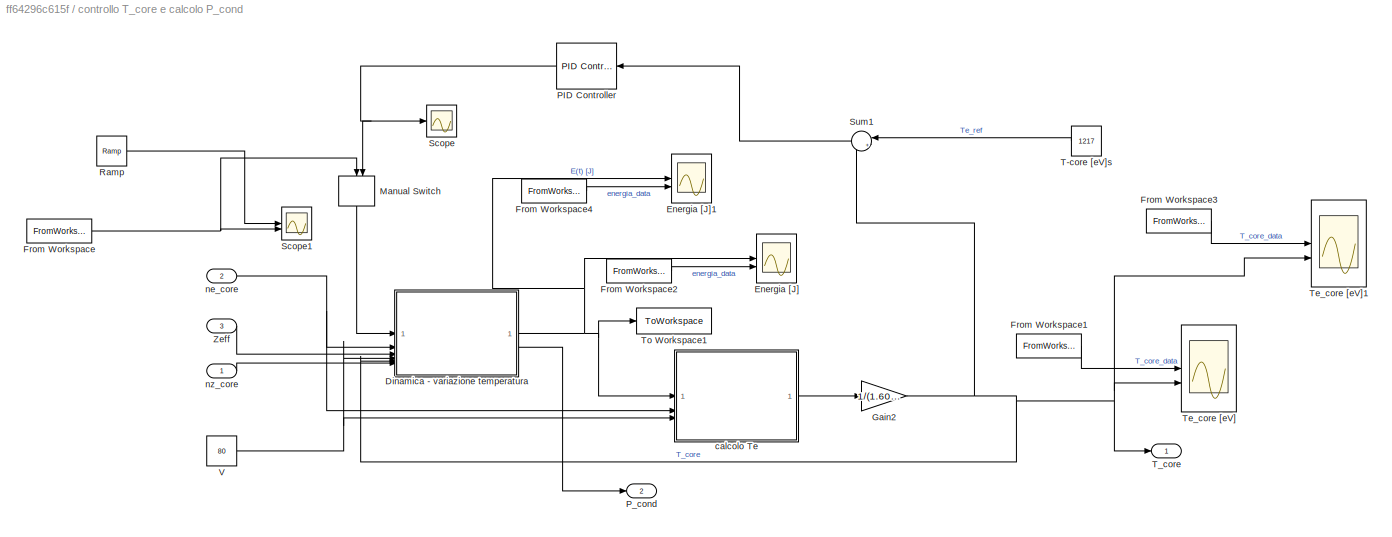
BLOCK [SubSystem] controllo T_core e calcolo P_cond
BLOCK [SubSystem] controllo T_core e calcolo P_cond/Dinamica - variazione temperatura
BLOCK [SubSystem] controllo T_core e calcolo P_cond/Dinamica - variazione temperatura/Calcolo dE
  ErrorFcn = Stateflow.Translate.translate
  PermitHierarchicalResolution = ExplicitOnly
  SFBlockType = MATLAB Function
  TreatAsAtomicUnit = on
BLOCK [Demux] controllo T_core e calcolo P_cond/Dinamica - variazione temperatura/Calcolo dE/ Demux 
  Outputs = 1
BLOCK [S-Function] controllo T_core e calcolo P_cond/Dinamica - variazione temperatura/Calcolo dE/ SFunction 
  EnableBusSupport = on
  FunctionName = sf_sfun
  PortCounts = [5 2]
  SFcnIsStateOwnerBlock = off
  SFunctionDeploymentMode = off
  Tag = Stateflow S-Function 10
BLOCK [Terminator] controllo T_core e calcolo P_cond/Dinamica - variazione temperatura/Calcolo dE/ Terminator 
BLOCK [Inport] controllo T_core e calcolo P_cond/Dinamica - variazione temperatura/Calcolo dE/E
  Port = 2
BLOCK [Inport] controllo T_core e calcolo P_cond/Dinamica - variazione temperatura/Calcolo dE/P_brem
  Port = 4
BLOCK [Inport] controllo T_core e calcolo P_cond/Dinamica - variazione temperatura/Calcolo dE/P_imp
  Port = 5
BLOCK [Inport] controllo T_core e calcolo P_cond/Dinamica - variazione temperatura/Calcolo dE/Pnbi
  Port = 3
BLOCK [Outport] controllo T_core e calcolo P_cond/Dinamica - variazione temperatura/Calcolo dE/dE
BLOCK [Inport] controllo T_core e calcolo P_cond/Dinamica - variazione temperatura/Calcolo dE/tau
BLOCK [Display] controllo T_core e calcolo P_cond/Dinamica - variazione temperatura/Display
  Decimation = 1
BLOCK [Product] controllo T_core e calcolo P_cond/Dinamica - variazione temperatura/Divide
  Inputs = */
BLOCK [Outport] controllo T_core e calcolo P_cond/Dinamica - variazione temperatura/E(t) [J]
BLOCK [Gain] controllo T_core e calcolo P_cond/Dinamica - variazione temperatura/Gain
  Gain = 0.48
BLOCK [Integrator] controllo T_core e calcolo P_cond/Dinamica - variazione temperatura/Integrator
  InitialCondition = ci_energia
BLOCK [SubSystem] controllo T_core e calcolo P_cond/Dinamica - variazione temperatura/MATLAB Function
  ErrorFcn = Stateflow.Translate.translate
  PermitHierarchicalResolution = ExplicitOnly
  SFBlockType = MATLAB Function
  TreatAsAtomicUnit = on
BLOCK [Demux] controllo T_core e calcolo P_cond/Dinamica - variazione temperatura/MATLAB Function/ Demux 
  Outputs = 1
BLOCK [S-Function] controllo T_core e calcolo P_cond/Dinamica - variazione temperatura/MATLAB Function/ SFunction 
  EnableBusSupport = on
  FunctionName = sf_sfun
  PortCounts = [5 2]
  SFcnIsStateOwnerBlock = off
  SFunctionDeploymentMode = off
  Tag = Stateflow S-Function 11
BLOCK [Terminator] controllo T_core e calcolo P_cond/Dinamica - variazione temperatura/MATLAB Function/ Terminator 
BLOCK [Outport] controllo T_core e calcolo P_cond/Dinamica - variazione temperatura/MATLAB Function/P_brem
BLOCK [Inport] controllo T_core e calcolo P_cond/Dinamica - variazione temperatura/MATLAB Function/Te_core
  Port = 4
BLOCK [Inport] controllo T_core e calcolo P_cond/Dinamica - variazione temperatura/MATLAB Function/V
  Port = 5
BLOCK [Inport] controllo T_core e calcolo P_cond/Dinamica - variazione temperatura/MATLAB Function/Zeff
BLOCK [Inport] controllo T_core e calcolo P_cond/Dinamica - variazione temperatura/MATLAB Function/ne
  Port = 3
BLOCK [Inport] controllo T_core e calcolo P_cond/Dinamica - variazione temperatura/MATLAB Function/ni
  Port = 2
BLOCK [SubSystem] controllo T_core e calcolo P_cond/Dinamica - variazione temperatura/MATLAB Function2
  ErrorFcn = Stateflow.Translate.translate
  PermitHierarchicalResolution = ExplicitOnly
  SFBlockType = MATLAB Function
  TreatAsAtomicUnit = on
BLOCK [Demux] controllo T_core e calcolo P_cond/Dinamica - variazione temperatura/MATLAB Function2/ Demux 
  Outputs = 1
BLOCK [S-Function] controllo T_core e calcolo P_cond/Dinamica - variazione temperatura/MATLAB Function2/ SFunction 
  EnableBusSupport = on
  FunctionName = sf_sfun
  PortCounts = [2 2]
  SFcnIsStateOwnerBlock = off
  SFunctionDeploymentMode = off
  Tag = Stateflow S-Function 5
BLOCK [Terminator] controllo T_core e calcolo P_cond/Dinamica - variazione temperatura/MATLAB Function2/ Terminator 
BLOCK [Outport] controllo T_core e calcolo P_cond/Dinamica - variazione temperatura/MATLAB Function2/P_imp
BLOCK [Inport] controllo T_core e calcolo P_cond/Dinamica - variazione temperatura/MATLAB Function2/cz
BLOCK [Inport] controllo T_core e calcolo P_cond/Dinamica - variazione temperatura/MATLAB Function2/ne
  Port = 2
BLOCK [Scope] controllo T_core e calcolo P_cond/Dinamica - variazione temperatura/P-cond
  Floating = off
  NumInputPorts = 1
  ScopeSpecificationString = Simulink.scopes.TimeScopeBlockCfg('CurrentConfiguration', extmgr.ConfigurationSet(extmgr.Configuration('Core','General UI',true),extmgr.Configuration('Core','Source UI',true),extmgr.Configuration('Sources','WiredSimulink',true,'DataLoggingVariableName','ScopeData5'),extmgr.Configuration('Visuals','Time Domain',true,'SerializedDisplays',{struct('MinYLimReal','709276.27239','MaxYLimReal','1620190.66...<+1538ch>
BLOCK [Inport] controllo T_core e calcolo P_cond/Dinamica - variazione temperatura/Pnbi
BLOCK [Scope] controllo T_core e calcolo P_cond/Dinamica - variazione temperatura/Scope
  Floating = off
  NumInputPorts = 1
  ScopeSpecificationString = Simulink.scopes.TimeScopeBlockCfg('CurrentConfiguration', extmgr.ConfigurationSet(extmgr.Configuration('Core','General UI',true),extmgr.Configuration('Core','Source UI',true),extmgr.Configuration('Sources','WiredSimulink',true,'DataLoggingVariableName','ScopeData1'),extmgr.Configuration('Visuals','Time Domain',true,'SerializedDisplays',{struct('MinYLimReal','320881.49456','MaxYLimReal','1103116.49...<+1687ch>
BLOCK [Scope] controllo T_core e calcolo P_cond/Dinamica - variazione temperatura/Scope1
  Floating = off
  NumInputPorts = 1
  ScopeSpecificationString = Simulink.scopes.TimeScopeBlockCfg('CurrentConfiguration', extmgr.ConfigurationSet(extmgr.Configuration('Core','General UI',true),extmgr.Configuration('Core','Source UI',true),extmgr.Configuration('Sources','WiredSimulink',true,'DataLoggingVariableName','ScopeData2'),extmgr.Configuration('Visuals','Time Domain',true,'SerializedDisplays',{struct('MinYLimReal','17868.89745','MaxYLimReal','101681.7417...<+1530ch>
BLOCK [Scope] controllo T_core e calcolo P_cond/Dinamica - variazione temperatura/Scope2
  Floating = off
  NumInputPorts = 1
  ScopeSpecificationString = Simulink.scopes.TimeScopeBlockCfg('CurrentConfiguration', extmgr.ConfigurationSet(extmgr.Configuration('Core','General UI',true),extmgr.Configuration('Core','Source UI',true),extmgr.Configuration('Sources','WiredSimulink',true,'DataLoggingVariableName','ScopeData2'),extmgr.Configuration('Visuals','Time Domain',true,'SerializedDisplays',{struct('MinYLimReal','-1.00000','MaxYLimReal','1.00000','YLab...<+1513ch>
BLOCK [Scope] controllo T_core e calcolo P_cond/Dinamica - variazione temperatura/Scope3
  Floating = off
  NumInputPorts = 1
  ScopeSpecificationString = Simulink.scopes.TimeScopeBlockCfg('CurrentConfiguration', extmgr.ConfigurationSet(extmgr.Configuration('Core','General UI',true),extmgr.Configuration('Core','Source UI',true),extmgr.Configuration('Sources','WiredSimulink',true,'DataLoggingVariableName','ScopeData1'),extmgr.Configuration('Visuals','Time Domain',true,'SerializedDisplays',{struct('MinYLimReal','851004.9375','MaxYLimReal','1810298.687...<+1505ch>
BLOCK [Scope] controllo T_core e calcolo P_cond/Dinamica - variazione temperatura/Scope4
  Floating = off
  NumInputPorts = 1
  ScopeSpecificationString = Simulink.scopes.TimeScopeBlockCfg('CurrentConfiguration', extmgr.ConfigurationSet(extmgr.Configuration('Core','General UI',true),extmgr.Configuration('Core','Source UI',true),extmgr.Configuration('Sources','WiredSimulink',true,'DataLoggingVariableName','ScopeData3'),extmgr.Configuration('Visuals','Time Domain',true,'SerializedDisplays',{struct('MinYLimReal','653246.52264','MaxYLimReal','1679759.95...<+1528ch>
BLOCK [Scope] controllo T_core e calcolo P_cond/Dinamica - variazione temperatura/Scope5
  Floating = off
  NumInputPorts = 1
  ScopeSpecificationString = Simulink.scopes.TimeScopeBlockCfg('CurrentConfiguration', extmgr.ConfigurationSet(extmgr.Configuration('Core','General UI',true),extmgr.Configuration('Core','Source UI',true),extmgr.Configuration('Sources','WiredSimulink',true,'DataLoggingVariableName','ScopeData1'),extmgr.Configuration('Visuals','Time Domain',true,'SerializedDisplays',{struct('MinYLimReal','-747685.8031','MaxYLimReal','185013.529...<+1503ch>
BLOCK [Sum] controllo T_core e calcolo P_cond/Dinamica - variazione temperatura/Sum
  Inputs = |+++
BLOCK [Inport] controllo T_core e calcolo P_cond/Dinamica - variazione temperatura/Te_core
  Port = 5
BLOCK [ToWorkspace] controllo T_core e calcolo P_cond/Dinamica - variazione temperatura/To Workspace1
  FixptAsFi = on
  MaxDataPoints = inf
  SampleTime = -1
  SaveFormat = Timeseries
  VariableName = P_cond
BLOCK [Inport] controllo T_core e calcolo P_cond/Dinamica - variazione temperatura/V
  Port = 4
BLOCK [Inport] controllo T_core e calcolo P_cond/Dinamica - variazione temperatura/Zeff
  Port = 3
BLOCK [Inport] controllo T_core e calcolo P_cond/Dinamica - variazione temperatura/ni
  Port = 2
BLOCK [Inport] controllo T_core e calcolo P_cond/Dinamica - variazione temperatura/nz_core
  Port = 6
BLOCK [Outport] controllo T_core e calcolo P_cond/Dinamica - variazione temperatura/pcond
  Port = 2
BLOCK [Constant] controllo T_core e calcolo P_cond/Dinamica - variazione temperatura/tau_e
  Value = 0.48
BLOCK [Scope] controllo T_core e calcolo P_cond/Energia [J]
  Floating = off
  NumInputPorts = 2
  ScopeSpecificationString = Simulink.scopes.TimeScopeBlockCfg('CurrentConfiguration', extmgr.ConfigurationSet(extmgr.Configuration('Core','General UI',true,'FigureColor',[0.941176470588235 0.941176470588235 0.941176470588235]),extmgr.Configuration('Core','Source UI',true),extmgr.Configuration('Sources','WiredSimulink',true,'DataLoggingVariableName','ScopeData3'),extmgr.Configuration('Visuals','Time Domain',true,'SerializedDi...<+1874ch>
BLOCK [Scope] controllo T_core e calcolo P_cond/Energia [J]1
  Floating = off
  NumInputPorts = 2
  ScopeSpecificationString = Simulink.scopes.TimeScopeBlockCfg('CurrentConfiguration', extmgr.ConfigurationSet(extmgr.Configuration('Core','General UI',true,'FigureColor',[0.941176470588235 0.941176470588235 0.941176470588235]),extmgr.Configuration('Core','Source UI',true),extmgr.Configuration('Sources','WiredSimulink',true,'DataLoggingVariableName','ScopeData3'),extmgr.Configuration('Visuals','Time Domain',true,'SerializedDi...<+1870ch>
BLOCK [FromWorkspace] controllo T_core e calcolo P_cond/From Workspace
  VariableName = P_tot
BLOCK [FromWorkspace] controllo T_core e calcolo P_cond/From Workspace1
  VariableName = temp_core_data
BLOCK [FromWorkspace] controllo T_core e calcolo P_cond/From Workspace2
  VariableName = media_energia
BLOCK [FromWorkspace] controllo T_core e calcolo P_cond/From Workspace3
  VariableName = temp_core_data_filt
BLOCK [FromWorkspace] controllo T_core e calcolo P_cond/From Workspace4
  VariableName = media_energia_filt
BLOCK [Gain] controllo T_core e calcolo P_cond/Gain2
  Gain = 1/(1.602*10^-19)
BLOCK [ManualSwitch] controllo T_core e calcolo P_cond/Manual Switch
  NameLocation = left
BLOCK [Reference] controllo T_core e calcolo P_cond/PID Controller  REF=slpidlib/PID Controller
  SourceBlock = slpidlib/PID Controller
  SourceType = PID 1dof
BLOCK [Outport] controllo T_core e calcolo P_cond/P_cond
  Port = 2
BLOCK [Reference] controllo T_core e calcolo P_cond/Ramp  REF=simulink/Sources/Ramp
  SourceBlock = simulink/Sources/Ramp
  SourceType = Ramp
BLOCK [Scope] controllo T_core e calcolo P_cond/Scope
  Floating = off
  NumInputPorts = 1
  ScopeSpecificationString = Simulink.scopes.TimeScopeBlockCfg('CurrentConfiguration', extmgr.ConfigurationSet(extmgr.Configuration('Core','General UI',true),extmgr.Configuration('Core','Source UI',true),extmgr.Configuration('Sources','WiredSimulink',true,'DataLoggingVariableName','ScopeData11'),extmgr.Configuration('Visuals','Time Domain',true,'SerializedDisplays',{struct('MinYLimReal','1934930.27982','MaxYLimReal','3118341....<+1553ch>
BLOCK [Scope] controllo T_core e calcolo P_cond/Scope1
  Floating = off
  NumInputPorts = 2
  ScopeSpecificationString = Simulink.scopes.TimeScopeBlockCfg('CurrentConfiguration', extmgr.ConfigurationSet(extmgr.Configuration('Core','General UI',true),extmgr.Configuration('Core','Source UI',true),extmgr.Configuration('Sources','WiredSimulink',true,'DataLoggingVariableName','ScopeData10'),extmgr.Configuration('Visuals','Time Domain',true,'SerializedDisplays',{struct('MinYLimReal','769806.93638','MaxYLimReal','1995370.6...<+1887ch>
BLOCK [Sum] controllo T_core e calcolo P_cond/Sum1
  Inputs = |+-
BLOCK [Constant] controllo T_core e calcolo P_cond/T-core [eV]s
  Value = 1217
BLOCK [Outport] controllo T_core e calcolo P_cond/T_core
BLOCK [Scope] controllo T_core e calcolo P_cond/Te_core [eV]
  Floating = off
  NumInputPorts = 2
  ScopeSpecificationString = Simulink.scopes.TimeScopeBlockCfg('CurrentConfiguration', extmgr.ConfigurationSet(extmgr.Configuration('Core','General UI',true,'FigureColor',[1 1 1]),extmgr.Configuration('Core','Source UI',true),extmgr.Configuration('Sources','WiredSimulink',true,'DataLoggingVariableName','ScopeData5'),extmgr.Configuration('Visuals','Time Domain',true,'TimeAxisLabels','All','SerializedDisplays',{struct('MinYLimR...<+1808ch>
BLOCK [Scope] controllo T_core e calcolo P_cond/Te_core [eV]1
  Floating = off
  NumInputPorts = 2
  ScopeSpecificationString = Simulink.scopes.TimeScopeBlockCfg('CurrentConfiguration', extmgr.ConfigurationSet(extmgr.Configuration('Core','General UI',true,'FigureColor',[1 1 1]),extmgr.Configuration('Core','Source UI',true),extmgr.Configuration('Sources','WiredSimulink',true,'DataLoggingVariableName','ScopeData2'),extmgr.Configuration('Visuals','Time Domain',true,'TimeAxisLabels','All','SerializedDisplays',{struct('MinYLimR...<+1812ch>
BLOCK [ToWorkspace] controllo T_core e calcolo P_cond/To Workspace1
  FixptAsFi = on
  MaxDataPoints = inf
  SampleTime = -1
  SaveFormat = Timeseries
  VariableName = Energia
BLOCK [Constant] controllo T_core e calcolo P_cond/V
  Value = 80
BLOCK [Inport] controllo T_core e calcolo P_cond/Zeff
  Port = 3
BLOCK [SubSystem] controllo T_core e calcolo P_cond/calcolo Te
BLOCK [Constant] controllo T_core e calcolo P_cond/calcolo Te/Constant
  Value = 3
BLOCK [Product] controllo T_core e calcolo P_cond/calcolo Te/Divide
  Inputs = */
BLOCK [Inport] controllo T_core e calcolo P_cond/calcolo Te/E(t) [J]
BLOCK [Product] controllo T_core e calcolo P_cond/calcolo Te/Product
  Inputs = 3
BLOCK [Outport] controllo T_core e calcolo P_cond/calcolo Te/Te [J]
BLOCK [Inport] controllo T_core e calcolo P_cond/calcolo Te/V
  Port = 3
BLOCK [Gain] controllo T_core e calcolo P_cond/calcolo Te/media
  Gain = 3
BLOCK [Inport] controllo T_core e calcolo P_cond/calcolo Te/ne_core
  Port = 2
BLOCK [Inport] controllo T_core e calcolo P_cond/ne_core
  Port = 2
BLOCK [Inport] controllo T_core e calcolo P_cond/nz_core
BLOCK [Constant] corrisponde 3eV
  Value = 31340
BLOCK [SubSystem] fourier1
BLOCK [Constant] fourier1/Constant2
  Value = 50000
BLOCK [Integrator] fourier1/Integrator1
  InitialCondition = ci_T_tar/(8.617*10^-5)
BLOCK [Integrator] fourier1/Integrator2
  InitialCondition = ci_T_omp/(8.617*10^-5)
BLOCK [Integrator] fourier1/Integrator3
  InitialCondition = (ci_T_core + ci_T_omp)/( 2*8.617*10^-5)
BLOCK [SubSystem] fourier1/MATLAB Function1
  ErrorFcn = Stateflow.Translate.translate
  PermitHierarchicalResolution = ExplicitOnly
  SFBlockType = MATLAB Function
  TreatAsAtomicUnit = on
BLOCK [Demux] fourier1/MATLAB Function1/ Demux 
  Outputs = 1
BLOCK [S-Function] fourier1/MATLAB Function1/ SFunction 
  EnableBusSupport = on
  FunctionName = sf_sfun
  PortCounts = [6 2]
  SFcnIsStateOwnerBlock = off
  SFunctionDeploymentMode = off
  Tag = Stateflow S-Function 13
BLOCK [Terminator] fourier1/MATLAB Function1/ Terminator 
BLOCK [Inport] fourier1/MATLAB Function1/Text
  Port = 4
BLOCK [Inport] fourier1/MATLAB Function1/Tsol
  Port = 2
BLOCK [Inport] fourier1/MATLAB Function1/Ttar
  Port = 3
BLOCK [Outport] fourier1/MATLAB Function1/Ttar_dot
BLOCK [Inport] fourier1/MATLAB Function1/alpha
BLOCK [Inport] fourier1/MATLAB Function1/gamma
  Port = 5
BLOCK [Inport] fourier1/MATLAB Function1/q_rad
  Port = 6
BLOCK [SubSystem] fourier1/MATLAB Function2
  ErrorFcn = Stateflow.Translate.translate
  PermitHierarchicalResolution = ExplicitOnly
  SFBlockType = MATLAB Function
  TreatAsAtomicUnit = on
BLOCK [Demux] fourier1/MATLAB Function2/ Demux 
  Outputs = 1
BLOCK [S-Function] fourier1/MATLAB Function2/ SFunction 
  EnableBusSupport = on
  FunctionName = sf_sfun
  PortCounts = [5 2]
  SFcnIsStateOwnerBlock = off
  SFunctionDeploymentMode = off
  Tag = Stateflow S-Function 14
BLOCK [Terminator] fourier1/MATLAB Function2/ Terminator 
BLOCK [Inport] fourier1/MATLAB Function2/Tomp
  Port = 3
BLOCK [Inport] fourier1/MATLAB Function2/Tsol
  Port = 2
BLOCK [Outport] fourier1/MATLAB Function2/Tsol_dot
BLOCK [Inport] fourier1/MATLAB Function2/Ttar
  Port = 4
BLOCK [Inport] fourier1/MATLAB Function2/alpha
BLOCK [Inport] fourier1/MATLAB Function2/q_rad
  Port = 5
BLOCK [SubSystem] fourier1/MATLAB Function3
  ErrorFcn = Stateflow.Translate.translate
  PermitHierarchicalResolution = ExplicitOnly
  SFBlockType = MATLAB Function
  TreatAsAtomicUnit = on
BLOCK [Demux] fourier1/MATLAB Function3/ Demux 
  Outputs = 1
BLOCK [S-Function] fourier1/MATLAB Function3/ SFunction 
  EnableBusSupport = on
  FunctionName = sf_sfun
  PortCounts = [5 2]
  SFcnIsStateOwnerBlock = off
  SFunctionDeploymentMode = off
  Tag = Stateflow S-Function 15
BLOCK [Terminator] fourier1/MATLAB Function3/ Terminator 
BLOCK [Inport] fourier1/MATLAB Function3/P_cond
  Port = 4
BLOCK [Inport] fourier1/MATLAB Function3/Tomp
  Port = 3
BLOCK [Outport] fourier1/MATLAB Function3/Tomp_dot
BLOCK [Inport] fourier1/MATLAB Function3/Tsol
  Port = 2
BLOCK [Inport] fourier1/MATLAB Function3/alpha
BLOCK [Inport] fourier1/MATLAB Function3/q_rad
  Port = 5
BLOCK [Inport] fourier1/P_cond
BLOCK [Scope] fourier1/Scope
  Floating = off
  NumInputPorts = 1
  ScopeSpecificationString = Simulink.scopes.TimeScopeBlockCfg('CurrentConfiguration', extmgr.ConfigurationSet(extmgr.Configuration('Core','General UI',true),extmgr.Configuration('Core','Source UI',true),extmgr.Configuration('Sources','WiredSimulink',true,'DataLoggingVariableName','ScopeData1'),extmgr.Configuration('Visuals','Time Domain',true,'SerializedDisplays',{struct('MinYLimReal','-4972573.12933','MaxYLimReal','2474792....<+1582ch>
BLOCK [Outport] fourier1/T_omp
BLOCK [Outport] fourier1/T_sol
  Port = 2
BLOCK [Outport] fourier1/T_tar
  Port = 3
BLOCK [Constant] fourier1/alpha
  Value = 0.0001
BLOCK [Constant] fourier1/gamma
  Value = 2.457
  VectorParams1D = off
BLOCK [Inport] fourier1/q_rad
  Port = 2
BLOCK [Goto] invio Zeff allo scope
  GotoTag = Zeff
  TagVisibility = global
ANNOTATION (root): Densità impurezze core
ANNOTATION (root): Ingresso di controllo alla valvola
ANNOTATION (root): come temperatura al divertore cerchiamo 3eV
ANNOTATION calcolo Zeff: Densità Deuterio Core
ANNOTATION calcolo Zeff: Desnità impurezze Core
ANNOTATION calcolo Zeff: Tasso di ionizzazione
ANNOTATION controllo T_core e calcolo P_cond/Dinamica - variazione temperatura: Dinamica: E'(t) = -(1/tau_e)*E(t) - alpha*(sqrt(E(t)))+Pnbi
ANNOTATION controllo T_core e calcolo P_cond/Dinamica - variazione temperatura: sia la potenza di brem che quella delle impurezze vanno moltiplicate per il volume
ANNOTATION fourier1: 1keV al omp e 2.15 eV
LINE Azoto:1 -> MATLAB Function:8
LINE Constant1:1 -> Manual Switch2:2
LINE Constant4:1 -> Manual Switch1:2
LINE Constant6:1 -> MATLAB Function:7
LINE Constant7:1 -> MATLAB Function:6
NET Constant8:1 -> calcolo Zeff:3, calcolo cz:1, calcolo ne_omp:2
LINE Constant:1 -> Manual Switch:2
LINE From Workspace1:1 -> Mux:2
NET From Workspace2:1 -> Grafico - Zeff:2, controllo T_core e calcolo P_cond:3
LINE From Workspace3:1 -> Mux1:2
LINE From Workspace4:1 -> Temperature [eV]1:3
LINE From Workspace:1 -> Temperature [eV]:3
NET Gain1:1 -> MATLAB Function:2, Relazione omp e tar:2, Temperature [eV]1:2, Temperature [eV]:2, To Workspace3:1
NET Gain:1 -> MATLAB Function:3, Mux1:1, Mux:1, Relazione omp e tar:1, To Workspace:1
NET MATLAB Function:1 -> Scope3:1, Subsystem:1, To Workspace1:1, fourier1:2
NET Manual Switch1:1 -> calcolo Diluizione:1, calcolo Zeff:2, controllo T_core e calcolo P_cond:2
LINE Manual Switch2:1 -> Subsystem1:1
LINE Manual Switch:1 -> calcolo cz:3
LINE Mux1:1 -> Temperature [eV]1:1
LINE Mux:1 -> Temperature [eV]:1
LINE PID Controller:1 -> Manual Switch2:1
LINE Relazione omp e tar/Divide:1 -> Relazione omp e tar/Scope9:1
LINE Relazione omp e tar/Product1:1 -> Relazione omp e tar/Divide:2
LINE Relazione omp e tar/Product:1 -> Relazione omp e tar/Divide:1
LINE Relazione omp e tar/T-omp:1 -> Relazione omp e tar/Product:2
LINE Relazione omp e tar/T-target:1 -> Relazione omp e tar/Product1:1
LINE Relazione omp e tar/n_omp:1 -> Relazione omp e tar/Product:1
LINE Relazione omp e tar/n_tar:1 -> Relazione omp e tar/Product1:2
LINE Subsystem/Diluizione:1 -> Subsystem/Grafici - Rilevanti:3
LINE Subsystem/Mux1:1 -> Subsystem/Grafici - Rilevanti:6
LINE Subsystem/Zeff:1 -> Subsystem/Grafici - Rilevanti:2
LINE Subsystem/ne_Deuterio:1 -> Subsystem/Grafici - Rilevanti:4
LINE Subsystem/ne_iniettato_valvola:1 -> Subsystem/Mux1:1
NET Subsystem/nz_impurezze:1 -> Subsystem/Grafici - Rilevanti:5, Subsystem/Scope8:1
LINE Subsystem/nz_iniettato_valvola:1 -> Subsystem/Mux1:2
LINE Subsystem/q_rad:1 -> Subsystem/Grafici - Rilevanti:1
NET Subsystem1/Constant1:1 -> Subsystem1/MATLAB Function1:4, Subsystem1/MATLAB Function2:4, Subsystem1/MATLAB Function3:4, Subsystem1/MATLAB Function4:3
LINE Subsystem1/Constant2:1 -> Subsystem1/MATLAB Function4:1
LINE Subsystem1/Gain2:1 -> Subsystem1/MATLAB Function1:1
LINE Subsystem1/Gain3:1 -> Subsystem1/MATLAB Function2:1
LINE Subsystem1/Gain4:1 -> Subsystem1/MATLAB Function3:1
LINE Subsystem1/Input:1 -> Subsystem1/modello valvola azoto:1
NET Subsystem1/Integrator1:1 -> Subsystem1/MATLAB Function1:2, Subsystem1/MATLAB Function2:2, Subsystem1/MATLAB Function3:2, Subsystem1/Scope5:2, Subsystem1/n_omp:1
NET Subsystem1/Integrator2:1 -> Subsystem1/MATLAB Function2:5, Subsystem1/MATLAB Function3:5, Subsystem1/MATLAB Function4:4, Subsystem1/Scope5:3, Subsystem1/n_tar:1
NET Subsystem1/Integrator3:1 -> Subsystem1/MATLAB Function3:3, Subsystem1/MATLAB Function4:2, Subsystem1/Scope5:4
NET Subsystem1/Integrator:1 -> Subsystem1/MATLAB Function1:3, Subsystem1/MATLAB Function2:3, Subsystem1/Scope5:1, Subsystem1/n_core:1
LINE Subsystem1/MATLAB Function1:1 -> Subsystem1/Integrator:1
LINE Subsystem1/MATLAB Function2:1 -> Subsystem1/Integrator1:1
LINE Subsystem1/MATLAB Function3:1 -> Subsystem1/Integrator2:1
LINE Subsystem1/MATLAB Function4:1 -> Subsystem1/Integrator3:1
LINE Subsystem1/modello valvola azoto/Saturation:1 -> Subsystem1/modello valvola azoto/nz iniettato valvola:1
LINE Subsystem1/modello valvola azoto/Transfer Fcn:1 -> Subsystem1/modello valvola azoto/Saturation:1
LINE Subsystem1/modello valvola azoto/Transport Delay:1 -> Subsystem1/modello valvola azoto/Transfer Fcn:1
LINE Subsystem1/modello valvola azoto/u:1 -> Subsystem1/modello valvola azoto/Transport Delay:1
NET Subsystem1/modello valvola azoto:1 -> Subsystem1/Gain2:1, Subsystem1/Gain3:1, Subsystem1/Gain4:1, Subsystem1/Scope8:1
NET Subsystem1:1 -> calcolo Diluizione:2, calcolo Zeff:1, controllo T_core e calcolo P_cond:1
LINE Subsystem1:2 -> calcolo ne_omp:1
LINE Subsystem1:3 -> calcolo cz:2
LINE Subsystem2/Constant3:1 -> Subsystem2/Sum:2
LINE Subsystem2/From Workspace1:1 -> Subsystem2/Densità:2
LINE Subsystem2/From Workspace2:1 -> Subsystem2/Densità:4
LINE Subsystem2/From Workspace3:1 -> Subsystem2/Densità:6
LINE Subsystem2/From Workspace4:1 -> Subsystem2/Densità1:2
LINE Subsystem2/From Workspace5:1 -> Subsystem2/Densità1:4
LINE Subsystem2/From Workspace6:1 -> Subsystem2/Densità1:6
NET Subsystem2/From Workspace:1 -> Subsystem2/Scope:1, Subsystem2/volume:1
LINE Subsystem2/Gain2:1 -> Subsystem2/MATLAB Function1:1
LINE Subsystem2/Gain4:1 -> Subsystem2/MATLAB Function3:1
NET Subsystem2/Integrator1:1 -> Subsystem2/Densità1:3, Subsystem2/Densità:3, Subsystem2/MATLAB Function1:2, Subsystem2/MATLAB Function2:1, Subsystem2/MATLAB Function4:1, Subsystem2/n_omp:1
NET Subsystem2/Integrator2:1 -> Subsystem2/Densità1:5, Subsystem2/Densità:5, Subsystem2/MATLAB Function3:5, Subsystem2/MATLAB Function4:3, Subsystem2/n_tar:1
NET Subsystem2/Integrator3:1 -> Subsystem2/MATLAB Function2:4, Subsystem2/MATLAB Function3:2, Subsystem2/MATLAB Function4:4
NET Subsystem2/Integrator:1 -> Subsystem2/Densità1:1, Subsystem2/Densità:1, Subsystem2/MATLAB Function1:3, Subsystem2/MATLAB Function2:2, Subsystem2/Sum:1, Subsystem2/n_core:1
LINE Subsystem2/MATLAB Function1:1 -> Subsystem2/Integrator:1
LINE Subsystem2/MATLAB Function1:2 -> Subsystem2/Scope1:1
LINE Subsystem2/MATLAB Function2:1 -> Subsystem2/Integrator1:1
LINE Subsystem2/MATLAB Function3:1 -> Subsystem2/Integrator2:1
LINE Subsystem2/MATLAB Function4:1 -> Subsystem2/Integrator3:1
NET Subsystem2/Manual Switch:1 -> Subsystem2/Gain2:1, Subsystem2/Gain4:1
LINE Subsystem2/PID Controller1:1 -> Subsystem2/modello valvola azoto:1
LINE Subsystem2/Sum:1 -> Subsystem2/PID Controller1:1
LINE Subsystem2/modello valvola azoto/Saturation:1 -> Subsystem2/modello valvola azoto/nz iniettato valvola:1
LINE Subsystem2/modello valvola azoto/Transfer Fcn:1 -> Subsystem2/modello valvola azoto/Saturation:1
LINE Subsystem2/modello valvola azoto/Transport Delay:1 -> Subsystem2/modello valvola azoto/Transfer Fcn:1
LINE Subsystem2/modello valvola azoto/u:1 -> Subsystem2/modello valvola azoto/Transport Delay:1
LINE Subsystem2/modello valvola azoto:1 -> Subsystem2/Manual Switch:2
LINE Subsystem2/tau1:1 -> Subsystem2/MATLAB Function3:3
NET Subsystem2/tau:1 -> Subsystem2/MATLAB Function1:4, Subsystem2/MATLAB Function2:3, Subsystem2/MATLAB Function3:4, Subsystem2/MATLAB Function4:2
LINE Subsystem2/volume:1 -> Subsystem2/Manual Switch:1
NET Subsystem2:1 -> Manual Switch1:1, To Workspace2:1
NET Subsystem2:2 -> Relazione omp e tar:3, calcolo ne_omp:3
NET Subsystem2:3 -> Manual Switch:1, Relazione omp e tar:4
LINE Sum1:1 -> PID Controller:1
LINE calcolo Diluizione/Product:1 -> calcolo Diluizione/Percentuale Deuterio rimasto %:1
LINE calcolo Diluizione/conversione % :1 -> calcolo Diluizione/Product:1
LINE calcolo Diluizione/diluizione - nel core/Divide:1 -> calcolo Diluizione/diluizione - nel core/Out1:1
LINE calcolo Diluizione/diluizione - nel core/Product:1 -> calcolo Diluizione/diluizione - nel core/Subtract:2
LINE calcolo Diluizione/diluizione - nel core/Subtract:1 -> calcolo Diluizione/diluizione - nel core/Divide:2
LINE calcolo Diluizione/diluizione - nel core/Tasso di ionizzazione:1 -> calcolo Diluizione/diluizione - nel core/Product:2
NET calcolo Diluizione/diluizione - nel core/ne_core:1 -> calcolo Diluizione/diluizione - nel core/Divide:1, calcolo Diluizione/diluizione - nel core/Subtract:1
LINE calcolo Diluizione/diluizione - nel core/nz_core:1 -> calcolo Diluizione/diluizione - nel core/Product:1
NET calcolo Diluizione/diluizione - nel core:1 -> calcolo Diluizione/Deuterio residuo (Diluizione):1, calcolo Diluizione/Product:2, calcolo Diluizione/Scope5:1
LINE calcolo Diluizione/ne_core:1 -> calcolo Diluizione/diluizione - nel core:2
LINE calcolo Diluizione/nz_core:1 -> calcolo Diluizione/diluizione - nel core:1
LINE calcolo Zeff/MATLAB Function1:1 -> calcolo Zeff/Z:1
LINE calcolo Zeff/ion:1 -> calcolo Zeff/MATLAB Function1:2
LINE calcolo Zeff/n_e:1 -> calcolo Zeff/MATLAB Function1:3
LINE calcolo Zeff/nz:1 -> calcolo Zeff/MATLAB Function1:1
NET calcolo Zeff:1 -> Grafico - Zeff:1, MATLAB Function:1, Valore regime Zeff:1, invio Zeff allo scope:1
LINE calcolo cz/% di impurezza che rimane nel div. Parte restante migra nell'omp:1 -> calcolo cz/Product1:2
LINE calcolo cz/Divide:1 -> calcolo cz/cz:1
LINE calcolo cz/Manual Switch1:1 -> calcolo cz/Divide:2
NET calcolo cz/Product1:1 -> calcolo cz/Divide:1, calcolo cz/Product:1
LINE calcolo cz/Product:1 -> calcolo cz/Sum:2
LINE calcolo cz/Sum:1 -> calcolo cz/Manual Switch1:2
LINE calcolo cz/ion:1 -> calcolo cz/Product:2
NET calcolo cz/ne_target:1 -> calcolo cz/Manual Switch1:1, calcolo cz/Sum:1
LINE calcolo cz/nz-target:1 -> calcolo cz/Product1:1
NET calcolo cz:1 -> Cz:1, MATLAB Function:5, Scope:1
LINE calcolo ne_omp/Constant10:1 -> calcolo ne_omp/Product:2
LINE calcolo ne_omp/Constant:1 -> calcolo ne_omp/Manual Switch:1
LINE calcolo ne_omp/Manual Switch:1 -> calcolo ne_omp/Sum2:2
LINE calcolo ne_omp/Product1:1 -> calcolo ne_omp/Manual Switch:2
LINE calcolo ne_omp/Product:1 -> calcolo ne_omp/Product1:1
LINE calcolo ne_omp/Sum2:1 -> calcolo ne_omp/ne_omptot:1
LINE calcolo ne_omp/ion:1 -> calcolo ne_omp/Product1:2
LINE calcolo ne_omp/ne_omp:1 -> calcolo ne_omp/Sum2:1
LINE calcolo ne_omp/nz:1 -> calcolo ne_omp/Product:1
NET calcolo ne_omp:1 -> MATLAB Function:4, Scope15:1
NET controllo T_core e calcolo P_cond/Dinamica - variazione temperatura/Calcolo dE:1 -> controllo T_core e calcolo P_cond/Dinamica - variazione temperatura/Integrator:1, controllo T_core e calcolo P_cond/Dinamica - variazione temperatura/Scope5:1
LINE controllo T_core e calcolo P_cond/Dinamica - variazione temperatura/Divide:1 -> controllo T_core e calcolo P_cond/Dinamica - variazione temperatura/MATLAB Function2:1
NET controllo T_core e calcolo P_cond/Dinamica - variazione temperatura/Gain:1 -> controllo T_core e calcolo P_cond/Dinamica - variazione temperatura/P-cond:1, controllo T_core e calcolo P_cond/Dinamica - variazione temperatura/Sum:1, controllo T_core e calcolo P_cond/Dinamica - variazione temperatura/To Workspace1:1, controllo T_core e calcolo P_cond/Dinamica - variazione temperatura/pcond:1
NET controllo T_core e calcolo P_cond/Dinamica - variazione temperatura/Integrator:1 -> controllo T_core e calcolo P_cond/Dinamica - variazione temperatura/Calcolo dE:2, controllo T_core e calcolo P_cond/Dinamica - variazione temperatura/Display:1, controllo T_core e calcolo P_cond/Dinamica - variazione temperatura/E(t) [J]:1, controllo T_core e calcolo P_cond/Dinamica - variazione temperatura/Gain:1, controllo T_core e calcolo P_cond/Dinamica - variazione temperatura/Scope:1
NET controllo T_core e calcolo P_cond/Dinamica - variazione temperatura/MATLAB Function2:1 -> controllo T_core e calcolo P_cond/Dinamica - variazione temperatura/Calcolo dE:5, controllo T_core e calcolo P_cond/Dinamica - variazione temperatura/Scope2:1, controllo T_core e calcolo P_cond/Dinamica - variazione temperatura/Sum:3
NET controllo T_core e calcolo P_cond/Dinamica - variazione temperatura/MATLAB Function:1 -> controllo T_core e calcolo P_cond/Dinamica - variazione temperatura/Calcolo dE:4, controllo T_core e calcolo P_cond/Dinamica - variazione temperatura/Scope1:1, controllo T_core e calcolo P_cond/Dinamica - variazione temperatura/Sum:2
NET controllo T_core e calcolo P_cond/Dinamica - variazione temperatura/Pnbi:1 -> controllo T_core e calcolo P_cond/Dinamica - variazione temperatura/Calcolo dE:3, controllo T_core e calcolo P_cond/Dinamica - variazione temperatura/Scope3:1
LINE controllo T_core e calcolo P_cond/Dinamica - variazione temperatura/Sum:1 -> controllo T_core e calcolo P_cond/Dinamica - variazione temperatura/Scope4:1
LINE controllo T_core e calcolo P_cond/Dinamica - variazione temperatura/Te_core:1 -> controllo T_core e calcolo P_cond/Dinamica - variazione temperatura/MATLAB Function:4
LINE controllo T_core e calcolo P_cond/Dinamica - variazione temperatura/V:1 -> controllo T_core e calcolo P_cond/Dinamica - variazione temperatura/MATLAB Function:5
LINE controllo T_core e calcolo P_cond/Dinamica - variazione temperatura/Zeff:1 -> controllo T_core e calcolo P_cond/Dinamica - variazione temperatura/MATLAB Function:1
NET controllo T_core e calcolo P_cond/Dinamica - variazione temperatura/ni:1 -> controllo T_core e calcolo P_cond/Dinamica - variazione temperatura/Divide:2, controllo T_core e calcolo P_cond/Dinamica - variazione temperatura/MATLAB Function2:2, controllo T_core e calcolo P_cond/Dinamica - variazione temperatura/MATLAB Function:2, controllo T_core e calcolo P_cond/Dinamica - variazione temperatura/MATLAB Function:3
LINE controllo T_core e calcolo P_cond/Dinamica - variazione temperatura/nz_core:1 -> controllo T_core e calcolo P_cond/Dinamica - variazione temperatura/Divide:1
LINE controllo T_core e calcolo P_cond/Dinamica - variazione temperatura/tau_e:1 -> controllo T_core e calcolo P_cond/Dinamica - variazione temperatura/Calcolo dE:1
NET controllo T_core e calcolo P_cond/Dinamica - variazione temperatura:1 -> controllo T_core e calcolo P_cond/Energia [J]1:1, controllo T_core e calcolo P_cond/Energia [J]:1, controllo T_core e calcolo P_cond/To Workspace1:1, controllo T_core e calcolo P_cond/calcolo Te:1
LINE controllo T_core e calcolo P_cond/Dinamica - variazione temperatura:2 -> controllo T_core e calcolo P_cond/P_cond:1
LINE controllo T_core e calcolo P_cond/From Workspace1:1 -> controllo T_core e calcolo P_cond/Te_core [eV]:1
LINE controllo T_core e calcolo P_cond/From Workspace2:1 -> controllo T_core e calcolo P_cond/Energia [J]:2
LINE controllo T_core e calcolo P_cond/From Workspace3:1 -> controllo T_core e calcolo P_cond/Te_core [eV]1:1
LINE controllo T_core e calcolo P_cond/From Workspace4:1 -> controllo T_core e calcolo P_cond/Energia [J]1:2
NET controllo T_core e calcolo P_cond/From Workspace:1 -> controllo T_core e calcolo P_cond/Manual Switch:1, controllo T_core e calcolo P_cond/Scope1:2
NET controllo T_core e calcolo P_cond/Gain2:1 -> controllo T_core e calcolo P_cond/Dinamica - variazione temperatura:5, controllo T_core e calcolo P_cond/Sum1:2, controllo T_core e calcolo P_cond/T_core:1, controllo T_core e calcolo P_cond/Te_core [eV]1:2, controllo T_core e calcolo P_cond/Te_core [eV]:2
LINE controllo T_core e calcolo P_cond/Manual Switch:1 -> controllo T_core e calcolo P_cond/Dinamica - variazione temperatura:1
NET controllo T_core e calcolo P_cond/PID Controller:1 -> controllo T_core e calcolo P_cond/Manual Switch:2, controllo T_core e calcolo P_cond/Scope:1
LINE controllo T_core e calcolo P_cond/Ramp:1 -> controllo T_core e calcolo P_cond/Scope1:1
LINE controllo T_core e calcolo P_cond/Sum1:1 -> controllo T_core e calcolo P_cond/PID Controller:1
LINE controllo T_core e calcolo P_cond/T-core [eV]s:1 -> controllo T_core e calcolo P_cond/Sum1:1
NET controllo T_core e calcolo P_cond/V:1 -> controllo T_core e calcolo P_cond/Dinamica - variazione temperatura:4, controllo T_core e calcolo P_cond/calcolo Te:3
LINE controllo T_core e calcolo P_cond/Zeff:1 -> controllo T_core e calcolo P_cond/Dinamica - variazione temperatura:3
LINE controllo T_core e calcolo P_cond/calcolo Te/Constant:1 -> controllo T_core e calcolo P_cond/calcolo Te/Product:3
LINE controllo T_core e calcolo P_cond/calcolo Te/Divide:1 -> controllo T_core e calcolo P_cond/calcolo Te/media:1
LINE controllo T_core e calcolo P_cond/calcolo Te/E(t) [J]:1 -> controllo T_core e calcolo P_cond/calcolo Te/Divide:1
LINE controllo T_core e calcolo P_cond/calcolo Te/Product:1 -> controllo T_core e calcolo P_cond/calcolo Te/Divide:2
LINE controllo T_core e calcolo P_cond/calcolo Te/V:1 -> controllo T_core e calcolo P_cond/calcolo Te/Product:2
LINE controllo T_core e calcolo P_cond/calcolo Te/media:1 -> controllo T_core e calcolo P_cond/calcolo Te/Te [J]:1
LINE controllo T_core e calcolo P_cond/calcolo Te/ne_core:1 -> controllo T_core e calcolo P_cond/calcolo Te/Product:1
LINE controllo T_core e calcolo P_cond/calcolo Te:1 -> controllo T_core e calcolo P_cond/Gain2:1
NET controllo T_core e calcolo P_cond/ne_core:1 -> controllo T_core e calcolo P_cond/Dinamica - variazione temperatura:2, controllo T_core e calcolo P_cond/calcolo Te:2
LINE controllo T_core e calcolo P_cond/nz_core:1 -> controllo T_core e calcolo P_cond/Dinamica - variazione temperatura:6
LINE controllo T_core e calcolo P_cond:1 -> Scope2:1
NET controllo T_core e calcolo P_cond:2 -> Scope7:1, fourier1:1
LINE corrisponde 3eV:1 -> Sum1:1
LINE fourier1/Constant2:1 -> fourier1/MATLAB Function1:4
NET fourier1/Integrator1:1 -> fourier1/MATLAB Function1:3, fourier1/MATLAB Function2:4, fourier1/T_tar:1
NET fourier1/Integrator2:1 -> fourier1/MATLAB Function2:3, fourier1/MATLAB Function3:3, fourier1/T_omp:1
NET fourier1/Integrator3:1 -> fourier1/MATLAB Function1:2, fourier1/MATLAB Function2:2, fourier1/MATLAB Function3:2, fourier1/T_sol:1
LINE fourier1/MATLAB Function1:1 -> fourier1/Integrator1:1
LINE fourier1/MATLAB Function2:1 -> fourier1/Integrator3:1
NET fourier1/MATLAB Function3:1 -> fourier1/Integrator2:1, fourier1/Scope:1
LINE fourier1/P_cond:1 -> fourier1/MATLAB Function3:4
NET fourier1/alpha:1 -> fourier1/MATLAB Function1:1, fourier1/MATLAB Function2:1, fourier1/MATLAB Function3:1
LINE fourier1/gamma:1 -> fourier1/MATLAB Function1:5
NET fourier1/q_rad:1 -> fourier1/MATLAB Function1:6, fourier1/MATLAB Function2:5, fourier1/MATLAB Function3:5
NET fourier1:1 -> Gain:1, Scope1:1
LINE fourier1:2 -> Scope1:2
NET fourier1:3 -> Gain1:1, Scope1:3, Sum1:2
note: NET lines group one-source signal fan-out (src -> all destinations, sorted); 1:1 wires keep LINE
CHART controllo T_core e calcolo P_cond/Dinamica - variazione temperatura/MATLAB Function states=1 transitions=1
  STATE_LABEL 'eML_blk_kernel()'
  STATE_LABEL 'SCRIPT:\nfunction P_brem = fcn(Zeff, ni, ne,Te_core,V)\n    P_brem = (1.7*10^-38)*Zeff^2*ni*ne*sqrt(Te_core)*V;\nend\n'
CHART Subsystem1/MATLAB Function4 states=1 transitions=1
  STATE_LABEL 'eML_blk_kernel()'
  STATE_LABEL 'SCRIPT:\nfunction n_div_dot = fcn(tau1,n_div,tau, n_tar)\n    n_div_dot =  (n_tar-n_div)/20-(n_div)/tau1;\nend'
CHART fourier1/MATLAB Function1 states=1 transitions=1
  STATE_LABEL 'eML_blk_kernel()'
  STATE_LABEL 'SCRIPT:\nfunction Ttar_dot = fun(alpha, Tsol, Ttar, Text, gamma,q_rad)\n  Ttar_dot = (Tsol-Ttar)*alpha+(Text-Ttar)*gamma-q_rad/9 \nend'
CHART fourier1/MATLAB Function2 states=1 transitions=1
  STATE_LABEL 'eML_blk_kernel()'
  STATE_LABEL 'SCRIPT:\nfunction Tsol_dot = fun(alpha, Tsol, Tomp, Ttar,q_rad)\n    Tsol_dot = (Tomp-Tsol)*alpha+(Ttar-Tsol)*alpha-q_rad/(3*3)\nend'
CHART fourier1/MATLAB Function3 states=1 transitions=1
  STATE_LABEL 'eML_blk_kernel()'
  STATE_LABEL 'SCRIPT:\nfunction Tomp_dot = fun(alpha , Tsol,Tomp,P_cond,q_rad)\n    Tomp_dot = (Tsol-Tomp)*alpha+(P_cond)/(1000*0.014*3)-q_rad/(3*3)\n\nend\n'
CHART Subsystem2/MATLAB Function1 states=1 transitions=1
  STATE_LABEL 'eML_blk_kernel()'
  STATE_LABEL 'SCRIPT:\nfunction [n_core_dot,y] = fcn(S, n_omp,n_core,tau)\n    n_core_dot =  S+(n_omp-n_core)/tau;\n    y = (n_omp-n_core)/tau\nend'
CHART Subsystem2/MATLAB Function2 states=1 transitions=1
  STATE_LABEL 'eML_blk_kernel()'
  STATE_LABEL 'SCRIPT:\nfunction n_omp_dot = fcn( n_omp,n_core,tau, n_SOL)\n    n_omp_dot =  (n_core-n_omp)/tau+(n_SOL-n_omp)/tau ;\n    %n_omp_dot =  S+(n_tar-n_omp)/8 ;\nend'
CHART calcolo Zeff/MATLAB Function1 states=1 transitions=1
  STATE_LABEL 'eML_blk_kernel()'
  STATE_LABEL 'SCRIPT:\nfunction Zeff = fcn(n_z,ion, n_e)\n  \n    %Zeff = 2 + (n_z*ion^2+n_e)/(n_z*ion+n_e);\n\n    Zeff = 0.4 + (n_z*ion^2+n_e)/(n_z*ion+n_e)\n    \nend\n'
CHART Subsystem2/MATLAB Function3 states=1 transitions=1
  STATE_LABEL 'eML_blk_kernel()'
  STATE_LABEL 'SCRIPT:\nfunction n_tar_dot = fcn(S, n_SOL,tau1, tau, n_tar)\n    n_tar_dot =  S+(n_SOL-n_tar)/tau-n_tar/tau1;\nend'
CHART MATLAB Function states=1 transitions=1
  STATE_LABEL 'eML_blk_kernel()'
  STATE_LABEL "SCRIPT:\nfunction q_rad = fcn(Zeff, Te_tar, Te_omp, ne_omp, cz, k0, Te_values, Lz_values)\n\n    % Usa interp1 per fare l'interpolazione\n    Lz = @(Te) interp1(Te_values, Lz_values, Te, 'pchip', 'extrap');\n    % Definisci l'integranda come una funzione anonima\n    integrand = @(Te) Lz(Te) .* Te.^0.5 .* Zeff.^(-0.3);\n    %disp(integrand)\n    % Calcola l'integrale numerico tra Te_tar e Te_omp\n    y = i...<+136ch>"
CHART Subsystem2/MATLAB Function4 states=1 transitions=1
  STATE_LABEL 'eML_blk_kernel()'
  STATE_LABEL 'SCRIPT:\nfunction n_SOL_dot = fcn( n_omp, tau, n_tar, n_SOL)\n    n_SOL_dot =  (n_omp-n_SOL)/tau+(n_tar-n_SOL)/tau;\nend'
CHART controllo T_core e calcolo P_cond/Dinamica - variazione temperatura/MATLAB Function2 states=1 transitions=1
  STATE_LABEL 'eML_blk_kernel()'
  STATE_LABEL 'SCRIPT:\nfunction P_imp = fcn(cz, ne)\n    P_imp = cz*ne^2*(10^-34)\nend\n'
CHART Subsystem1/MATLAB Function1 states=1 transitions=1
  STATE_LABEL 'eML_blk_kernel()'
  STATE_LABEL 'SCRIPT:\nfunction n_core_dot = fcn(S, n_omp,n_core,tau)\n    n_core_dot =  S+(n_omp-n_core)/8000;\nend'
CHART Subsystem1/MATLAB Function2 states=1 transitions=1
  STATE_LABEL 'eML_blk_kernel()'
  STATE_LABEL 'SCRIPT:\nfunction n_omp_dot = fcn(S, n_omp,n_core,tau, n_tar)\n    n_omp_dot =  S+(n_core-n_omp)/800+(n_tar-n_omp)/200 ;\n    %n_omp_dot =  S+(n_tar-n_omp)/8 ;\nend'
CHART Subsystem1/MATLAB Function3 states=1 transitions=1
  STATE_LABEL 'eML_blk_kernel()'
  STATE_LABEL 'SCRIPT:\nfunction n_tar_dot = fcn(S, n_omp,n_div,tau, n_tar)\n    n_tar_dot =  S+(n_omp-n_tar)/200+(n_div-n_tar)/20;\nend'
CHART controllo T_core e calcolo P_cond/Dinamica - variazione temperatura/Calcolo dE states=1 transitions=1
  STATE_LABEL 'eML_blk_kernel()'
  STATE_LABEL 'SCRIPT:\nfunction dE  = eqDiff(tau, E, Pnbi, P_brem, P_imp)\n\n    % delta = 1e-8; % Se E < soglia, => E = 0\n    % k = 10;\n    % stopSim = false;\n    % \n    % if E < delta\n    %     dE = 0;\n    %     %stopSim = true; \n    % \n    % else\n    dE = -(1/tau)*E + Pnbi -P_brem -P_imp;\n    %le impurezze al momento sono nulle \n        \n    % end\n    % \nend'
CHART  states=0 transitions=0
CHART  states=0 transitions=0
CHART  states=0 transitions=0
CHART  states=0 transitions=0
CHART  states=0 transitions=0
CHART  states=0 transitions=0
CHART  states=0 transitions=0
CHART  states=0 transitions=0
CHART  states=0 transitions=0
CHART  states=0 transitions=0
CHART  states=0 transitions=0
CHART  states=0 transitions=0
CHART  states=0 transitions=0
CHART  states=0 transitions=0
CHART  states=0 transitions=0
CHART  states=0 transitions=0
